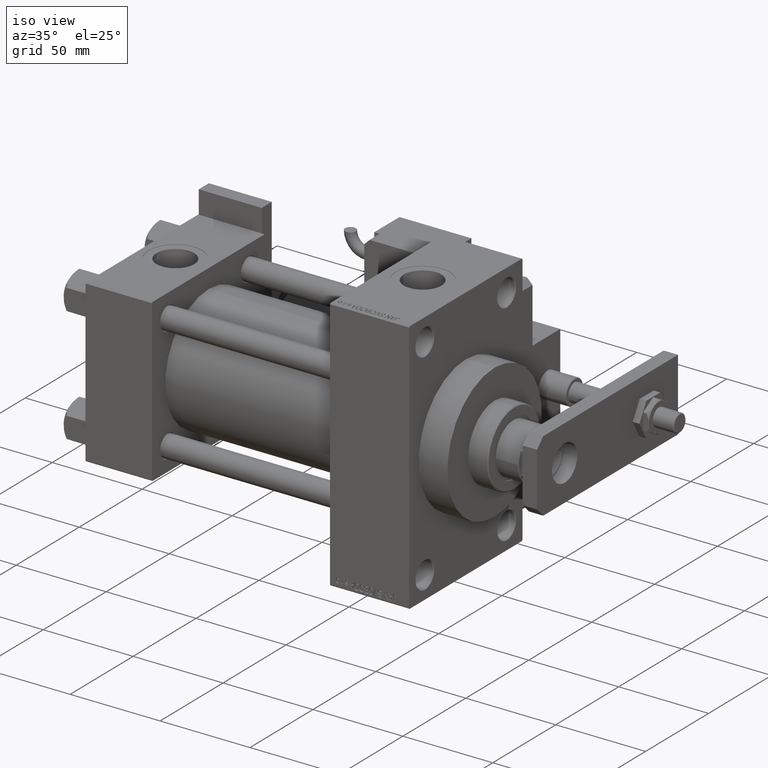
[diagram: clean part render]
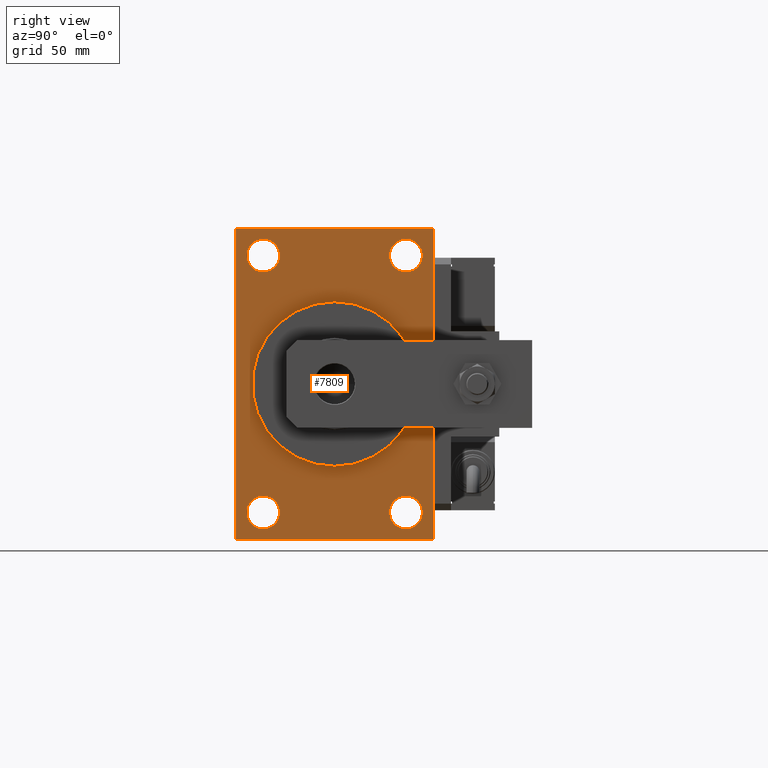
[diagram: tour spotlight — one face highlighted and labeled with its STEP entity id]
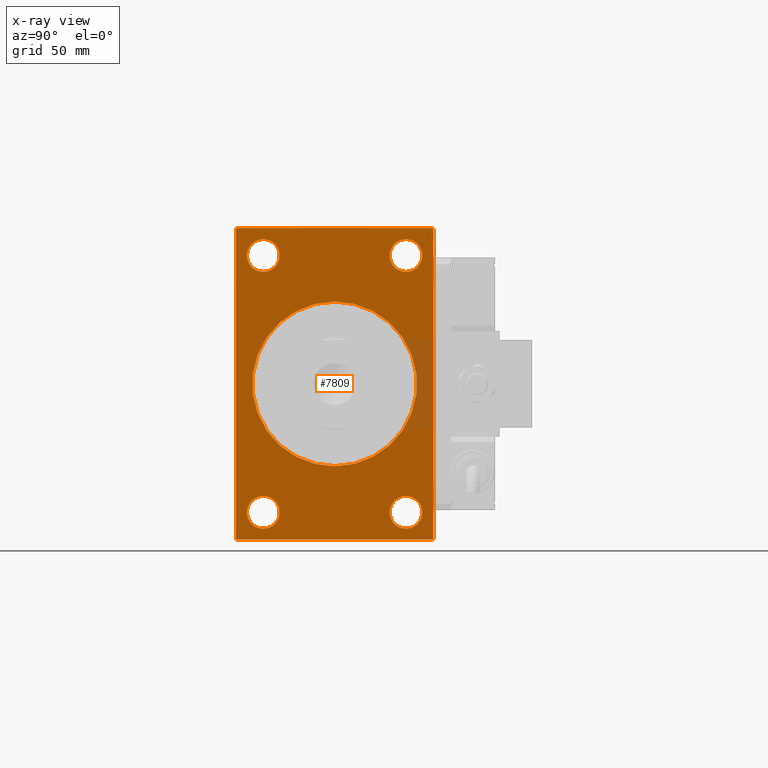
[diagram: x-ray of the same camera — body ghosted, this tour face saturated]
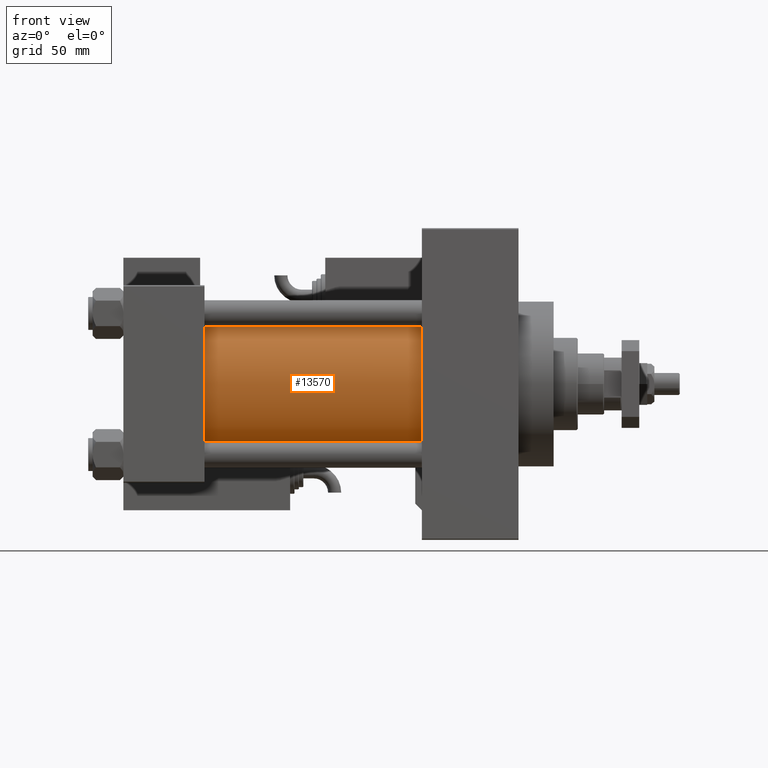
[diagram: tour spotlight — one face highlighted and labeled with its STEP entity id]
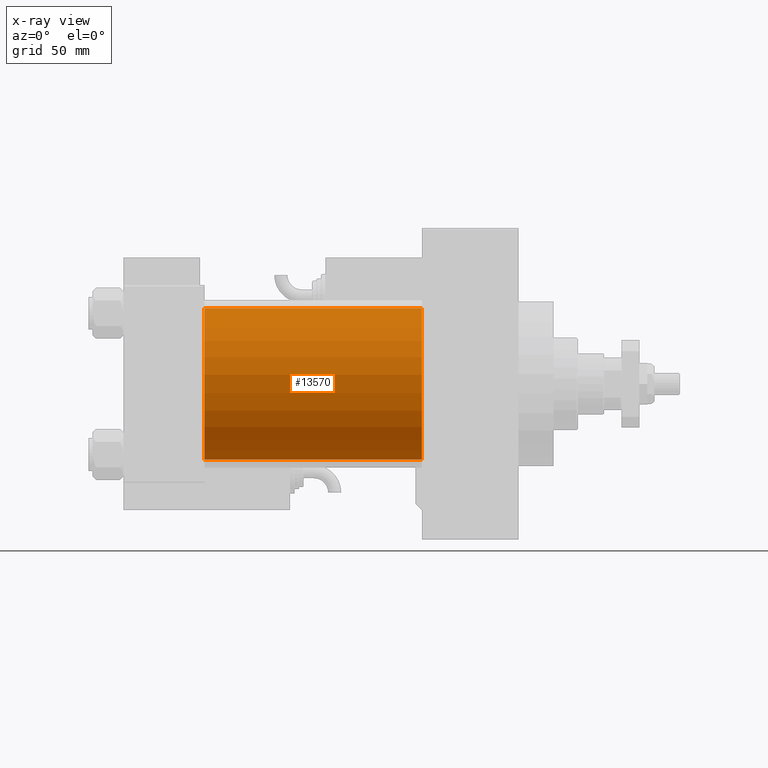
[diagram: x-ray of the same camera — body ghosted, this tour face saturated]
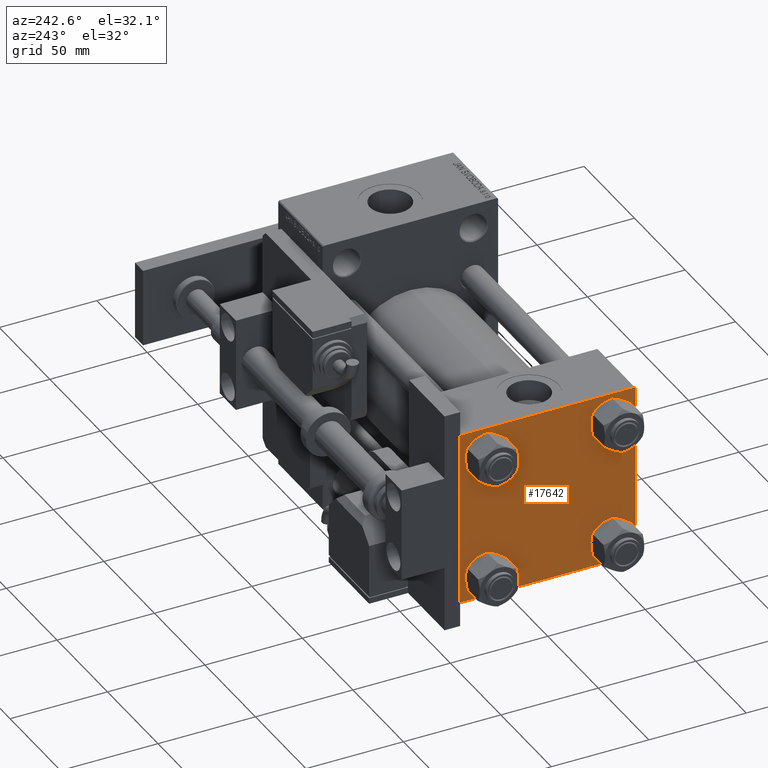
[diagram: tour spotlight — one face highlighted and labeled with its STEP entity id]
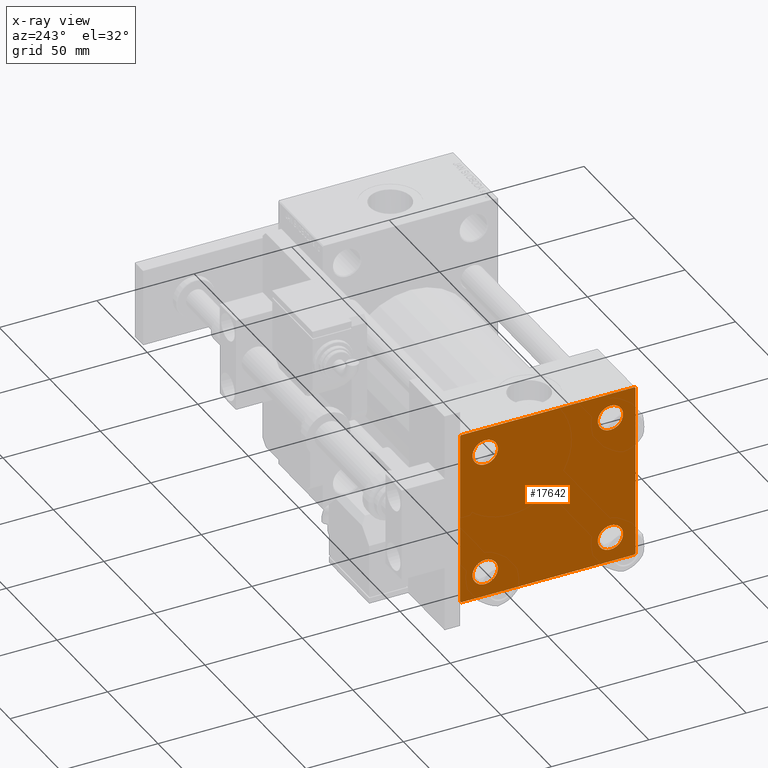
[diagram: x-ray of the same camera — body ghosted, this tour face saturated]
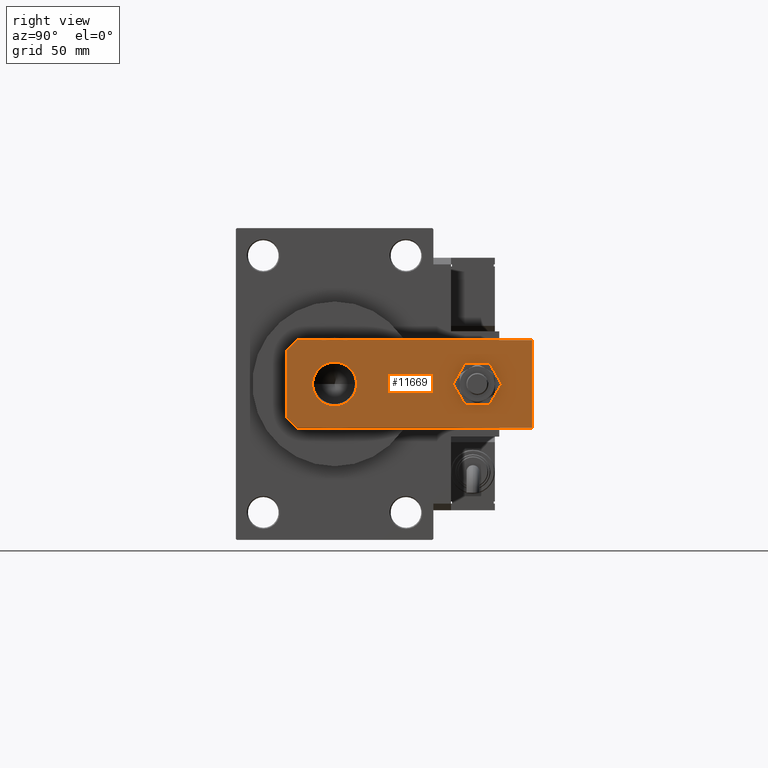
[diagram: tour spotlight — one face highlighted and labeled with its STEP entity id]
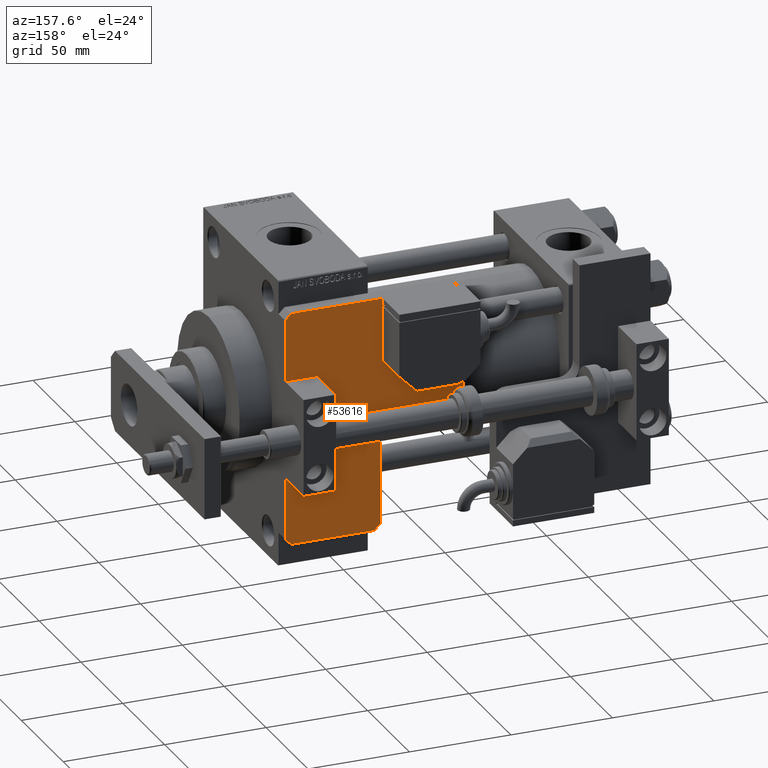
[diagram: tour spotlight — one face highlighted and labeled with its STEP entity id]
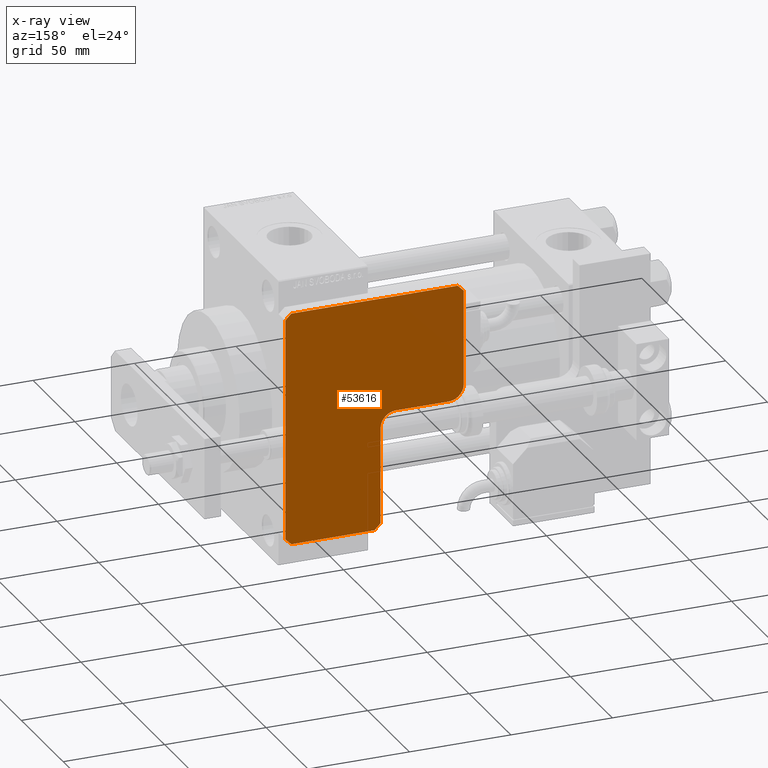
[diagram: x-ray of the same camera — body ghosted, this tour face saturated]
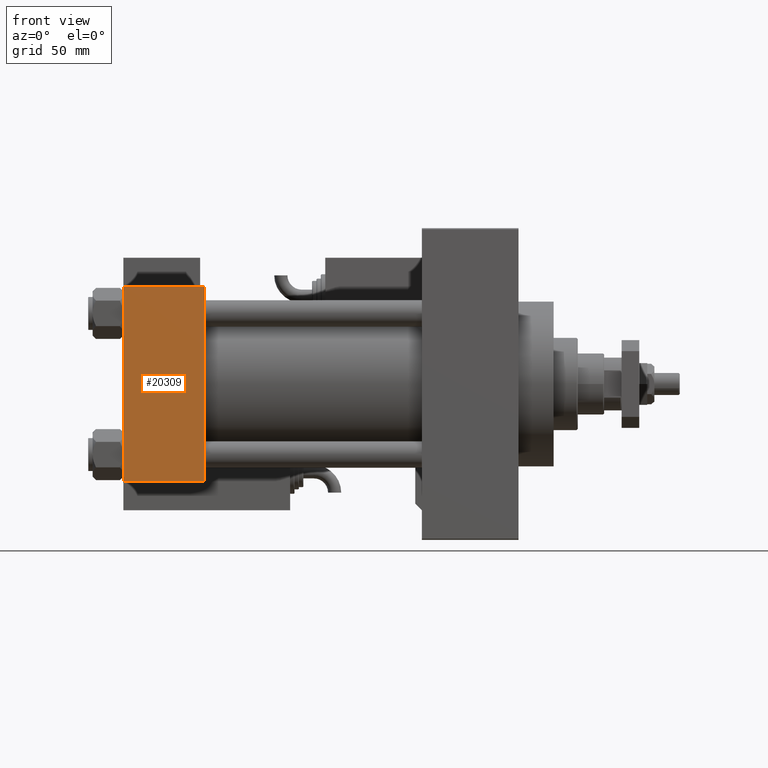
[diagram: tour spotlight — one face highlighted and labeled with its STEP entity id]
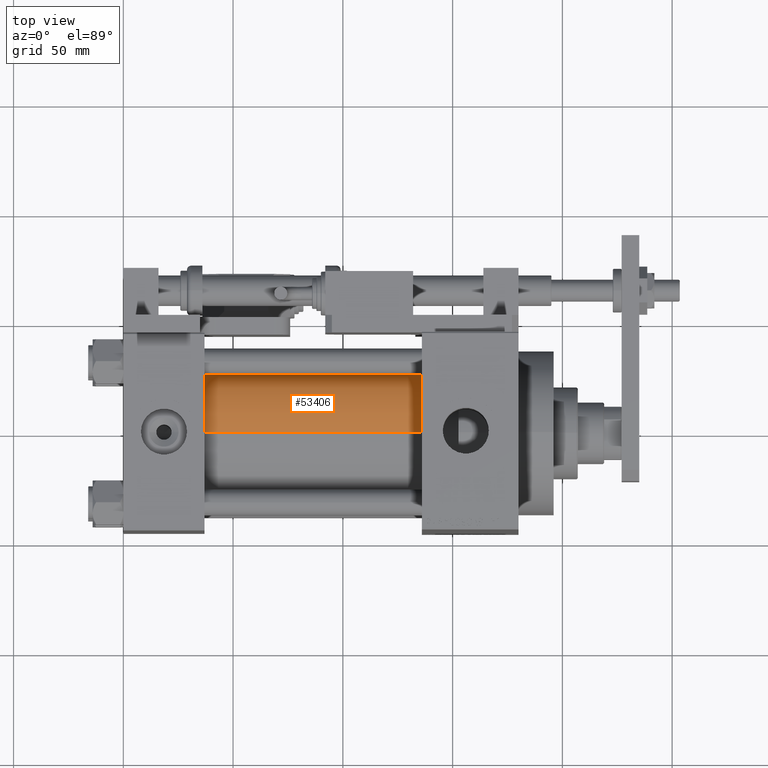
[diagram: tour spotlight — one face highlighted and labeled with its STEP entity id]
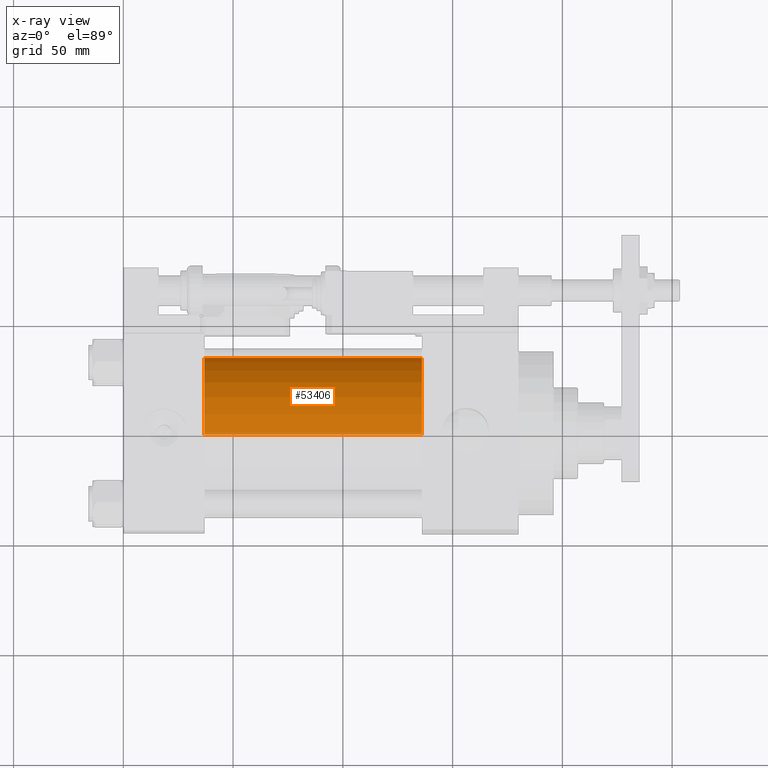
[diagram: x-ray of the same camera — body ghosted, this tour face saturated]
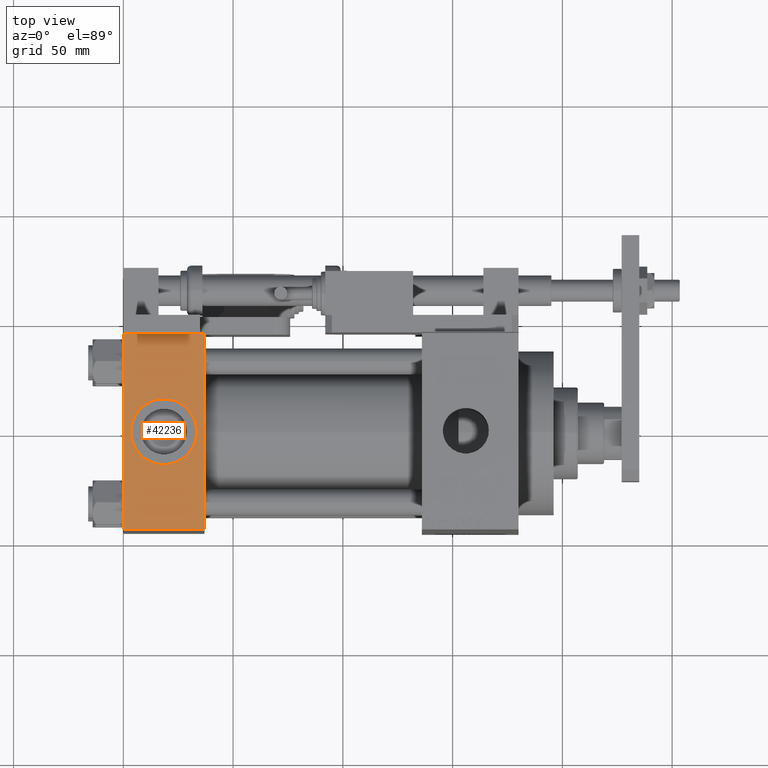
[diagram: tour spotlight — one face highlighted and labeled with its STEP entity id]
A machine part: a face-by-face anatomy tour. The part has 1432 B-rep faces; the first image is the clean iso view, then the 8 largest visible faces are spotlighted one at a time (largest first), each with its STEP entity span.

Face 1 — right view, entity #7809. An x-ray twin of the same camera follows (body ghosted, this face saturated) — the face is partly hidden behind the body. In plain terms, the highlighted planar face has unit normal (-1, 0, 0).
Definition (entity closure, byte-faithful):
#146 = EDGE_LOOP ( 'NONE', ( #7813, #30983 ) ) ;
#454 = DIRECTION ( 'NONE',  ( 0.000000000000000000, 0.000000000000000000, -1.000000000000000000 ) ) ;
#711 = DIRECTION ( 'NONE',  ( -1.000000000000000000, -0.000000000000000000, -0.000000000000000000 ) ) ;
#791 = CIRCLE ( 'NONE', #47013, 7.499999999999971578 ) ;
#932 = DIRECTION ( 'NONE',  ( 0.000000000000000000, 0.000000000000000000, 1.000000000000000000 ) ) ;
#2178 = FACE_BOUND ( 'NONE', #11689, .T. ) ;
#2732 = VERTEX_POINT ( 'NONE', #11847 ) ;
#2827 = CARTESIAN_POINT ( 'NONE',  ( 180.0000000000000000, 32.49999999999998579, -51.00000000000000711 ) ) ;
#2948 = CIRCLE ( 'NONE', #19844, 37.50000000000000711 ) ;
#3125 = CARTESIAN_POINT ( 'NONE',  ( 180.0000000000000000, 0.000000000000000000, 0.000000000000000000 ) ) ;
#3784 = DIRECTION ( 'NONE',  ( -1.000000000000000000, -0.000000000000000000, -0.000000000000000000 ) ) ;
#3912 = VERTEX_POINT ( 'NONE', #11454 ) ;
#4246 = EDGE_CURVE ( 'NONE', #14498, #5204, #11004, .T. ) ;
#4285 = CARTESIAN_POINT ( 'NONE',  ( 180.0000000000000000, 32.49999999999998579, -58.49999999999998579 ) ) ;
#4338 = CARTESIAN_POINT ( 'NONE',  ( 180.0000000000000000, -45.00000000000000000, 71.00000000000000000 ) ) ;
#5204 = VERTEX_POINT ( 'NONE', #2827 ) ;
#5307 = AXIS2_PLACEMENT_3D ( 'NONE', #16625, #24683, #7990 ) ;
#6767 = EDGE_CURVE ( 'NONE', #40682, #37753, #19608, .T. ) ;
#7582 = CARTESIAN_POINT ( 'NONE',  ( 180.0000000000000000, -45.00000000000000000, 70.50000000000001421 ) ) ;
#7809 = ADVANCED_FACE ( 'NONE', ( #2178, #43900, #19154, #14978, #9969, #48906 ), #52524, .F. ) ;
#7813 = ORIENTED_EDGE ( 'NONE', *, *, #4246, .T. ) ;
#7990 = DIRECTION ( 'NONE',  ( 0.000000000000000000, 0.000000000000000000, 1.000000000000000000 ) ) ;
#8089 = AXIS2_PLACEMENT_3D ( 'NONE', #51279, #17627, #932 ) ;
#8273 = CARTESIAN_POINT ( 'NONE',  ( 180.0000000000000000, 45.00000000000000000, 71.00000000000000000 ) ) ;
#8287 = VERTEX_POINT ( 'NONE', #7582 ) ;
#8351 = VERTEX_POINT ( 'NONE', #24826 ) ;
#9233 = CARTESIAN_POINT ( 'NONE',  ( 180.0000000000000000, -32.50000000000001421, 65.99999999999998579 ) ) ;
#9292 = CARTESIAN_POINT ( 'NONE',  ( 180.0000000000000000, -44.50000000000000000, -71.00000000000000000 ) ) ;
#9472 = DIRECTION ( 'NONE',  ( -1.000000000000000000, -0.000000000000000000, -0.000000000000000000 ) ) ;
#9963 = LINE ( 'NONE', #17783, #36748 ) ;
#9969 = FACE_BOUND ( 'NONE', #26458, .T. ) ;
#10417 = CARTESIAN_POINT ( 'NONE',  ( 180.0000000000000000, -45.00000000000000000, -70.50000000000000000 ) ) ;
#10802 = CARTESIAN_POINT ( 'NONE',  ( 180.0000000000000000, 0.000000000000000000, 0.000000000000000000 ) ) ;
#11004 = CIRCLE ( 'NONE', #30538, 7.499999999999978684 ) ;
#11454 = CARTESIAN_POINT ( 'NONE',  ( 180.0000000000000000, 32.49999999999998579, 65.99999999999997158 ) ) ;
#11689 = EDGE_LOOP ( 'NONE', ( #28724, #13804 ) ) ;
#11847 = CARTESIAN_POINT ( 'NONE',  ( 180.0000000000000000, 0.000000000000000000, 37.50000000000000711 ) ) ;
#12021 = DIRECTION ( 'NONE',  ( -0.000000000000000000, -0.7071067811865474617, -0.7071067811865474617 ) ) ;
#12150 = CARTESIAN_POINT ( 'NONE',  ( 180.0000000000000000, -32.50000000000001421, 58.50000000000001421 ) ) ;
#12247 = AXIS2_PLACEMENT_3D ( 'NONE', #52908, #36766, #53177 ) ;
#12928 = DIRECTION ( 'NONE',  ( -1.000000000000000000, -0.000000000000000000, -0.000000000000000000 ) ) ;
#13181 = EDGE_CURVE ( 'NONE', #16645, #8287, #25761, .T. ) ;
#13200 = DIRECTION ( 'NONE',  ( 0.000000000000000000, 0.000000000000000000, 1.000000000000000000 ) ) ;
#13804 = ORIENTED_EDGE ( 'NONE', *, *, #41916, .T. ) ;
#13832 = VECTOR ( 'NONE', #12021, 1000.000000000000114 ) ;
#14498 = VERTEX_POINT ( 'NONE', #49201 ) ;
#14779 = DIRECTION ( 'NONE',  ( 0.000000000000000000, 0.000000000000000000, -1.000000000000000000 ) ) ;
#14978 = FACE_BOUND ( 'NONE', #19776, .T. ) ;
#15205 = LINE ( 'NONE', #31351, #31983 ) ;
#15617 = ORIENTED_EDGE ( 'NONE', *, *, #13181, .T. ) ;
#15648 = ORIENTED_EDGE ( 'NONE', *, *, #26736, .T. ) ;
#15901 = EDGE_CURVE ( 'NONE', #3912, #42381, #21889, .T. ) ;
#15927 = VERTEX_POINT ( 'NONE', #23204 ) ;
#16002 = ORIENTED_EDGE ( 'NONE', *, *, #50161, .T. ) ;
#16625 = CARTESIAN_POINT ( 'NONE',  ( 180.0000000000000000, -32.50000000000001421, 58.50000000000001421 ) ) ;
#16645 = VERTEX_POINT ( 'NONE', #22813 ) ;
#17365 = CARTESIAN_POINT ( 'NONE',  ( 180.0000000000000000, 45.00000000000000000, -70.50000000000001421 ) ) ;
#17627 = DIRECTION ( 'NONE',  ( -1.000000000000000000, -0.000000000000000000, -0.000000000000000000 ) ) ;
#17680 = DIRECTION ( 'NONE',  ( 0.000000000000000000, 0.000000000000000000, 1.000000000000000000 ) ) ;
#17721 = LINE ( 'NONE', #8273, #46191 ) ;
#17783 = CARTESIAN_POINT ( 'NONE',  ( 180.0000000000000000, 45.00000000000000000, -70.50000000000001421 ) ) ;
#18840 = EDGE_CURVE ( 'NONE', #8351, #42386, #45984, .T. ) ;
#19154 = FACE_BOUND ( 'NONE', #146, .T. ) ;
#19310 = CARTESIAN_POINT ( 'NONE',  ( 180.0000000000000000, 45.00000000000000000, 71.00000000000000000 ) ) ;
#19608 = LINE ( 'NONE', #53815, #49322 ) ;
#19738 = DIRECTION ( 'NONE',  ( -1.000000000000000000, -0.000000000000000000, -0.000000000000000000 ) ) ;
#19776 = EDGE_LOOP ( 'NONE', ( #45192, #32347 ) ) ;
#19844 = AXIS2_PLACEMENT_3D ( 'NONE', #35906, #52879, #14779 ) ;
#19906 = VERTEX_POINT ( 'NONE', #17365 ) ;
#20790 = ORIENTED_EDGE ( 'NONE', *, *, #21347, .F. ) ;
#21347 = EDGE_CURVE ( 'NONE', #35636, #19906, #23759, .T. ) ;
#21857 = CARTESIAN_POINT ( 'NONE',  ( 180.0000000000000000, 32.49999999999998579, 58.50000000000000711 ) ) ;
#21889 = CIRCLE ( 'NONE', #28977, 7.499999999999965361 ) ;
#22000 = CARTESIAN_POINT ( 'NONE',  ( 180.0000000000000000, -32.50000000000001421, -58.49999999999998579 ) ) ;
#22813 = CARTESIAN_POINT ( 'NONE',  ( 180.0000000000000000, -44.50000000000000000, 71.00000000000000000 ) ) ;
#23204 = CARTESIAN_POINT ( 'NONE',  ( 180.0000000000000000, 4.592425496802575156E-15, -37.50000000000000711 ) ) ;
#23685 = EDGE_CURVE ( 'NONE', #35367, #47879, #791, .T. ) ;
#23759 = LINE ( 'NONE', #19310, #42431 ) ;
#24683 = DIRECTION ( 'NONE',  ( -1.000000000000000000, -0.000000000000000000, -0.000000000000000000 ) ) ;
#24826 = CARTESIAN_POINT ( 'NONE',  ( 180.0000000000000000, -32.50000000000001421, -51.00000000000000711 ) ) ;
#25761 = LINE ( 'NONE', #28688, #13832 ) ;
#25947 = ORIENTED_EDGE ( 'NONE', *, *, #6767, .F. ) ;
#25959 = CIRCLE ( 'NONE', #33933, 7.499999999999978684 ) ;
#26059 = ORIENTED_EDGE ( 'NONE', *, *, #33417, .T. ) ;
#26458 = EDGE_LOOP ( 'NONE', ( #40415, #54881 ) ) ;
#26736 = EDGE_CURVE ( 'NONE', #35636, #35148, #15205, .T. ) ;
#26940 = DIRECTION ( 'NONE',  ( -1.000000000000000000, 0.000000000000000000, -0.000000000000000000 ) ) ;
#27754 = DIRECTION ( 'NONE',  ( -0.000000000000000000, 0.000000000000000000, 1.000000000000000000 ) ) ;
#28157 = CARTESIAN_POINT ( 'NONE',  ( 180.0000000000000000, 32.49999999999998579, 51.00000000000004263 ) ) ;
#28165 = EDGE_CURVE ( 'NONE', #42381, #3912, #30325, .T. ) ;
#28565 = CARTESIAN_POINT ( 'NONE',  ( 180.0000000000000000, 45.00000000000000000, 70.50000000000000000 ) ) ;
#28688 = CARTESIAN_POINT ( 'NONE',  ( 180.0000000000000000, -45.00000000000000000, 70.50000000000001421 ) ) ;
#28724 = ORIENTED_EDGE ( 'NONE', *, *, #23685, .T. ) ;
#28977 = AXIS2_PLACEMENT_3D ( 'NONE', #21857, #711, #17680 ) ;
#29061 = ORIENTED_EDGE ( 'NONE', *, *, #18840, .T. ) ;
#29078 = EDGE_CURVE ( 'NONE', #31994, #37753, #38776, .T. ) ;
#29574 = CIRCLE ( 'NONE', #44641, 7.499999999999978684 ) ;
#30206 = CIRCLE ( 'NONE', #44402, 37.50000000000000711 ) ;
#30325 = CIRCLE ( 'NONE', #8089, 7.499999999999965361 ) ;
#30538 = AXIS2_PLACEMENT_3D ( 'NONE', #48667, #19738, #35867 ) ;
#30835 = DIRECTION ( 'NONE',  ( -0.000000000000000000, 0.7071067811865474617, 0.7071067811865474617 ) ) ;
#30983 = ORIENTED_EDGE ( 'NONE', *, *, #47643, .T. ) ;
#31351 = CARTESIAN_POINT ( 'NONE',  ( 180.0000000000000000, 44.50000000000000000, 71.00000000000000000 ) ) ;
#31577 = DIRECTION ( 'NONE',  ( 0.000000000000000000, -1.000000000000000000, 0.000000000000000000 ) ) ;
#31983 = VECTOR ( 'NONE', #40783, 1000.000000000000114 ) ;
#31994 = VERTEX_POINT ( 'NONE', #10417 ) ;
#32336 = EDGE_LOOP ( 'NONE', ( #26059, #45981, #25947, #16002, #20790, #15648, #48272, #15617 ) ) ;
#32347 = ORIENTED_EDGE ( 'NONE', *, *, #15901, .T. ) ;
#32862 = EDGE_CURVE ( 'NONE', #42386, #8351, #25959, .T. ) ;
#33417 = EDGE_CURVE ( 'NONE', #8287, #31994, #42993, .T. ) ;
#33444 = DIRECTION ( 'NONE',  ( 1.000000000000000000, 0.000000000000000000, 0.000000000000000000 ) ) ;
#33933 = AXIS2_PLACEMENT_3D ( 'NONE', #22000, #9472, #35059 ) ;
#34677 = DIRECTION ( 'NONE',  ( 0.000000000000000000, -1.000000000000000000, 0.000000000000000000 ) ) ;
#34862 = DIRECTION ( 'NONE',  ( 0.000000000000000000, 0.7071067811865474617, -0.7071067811865474617 ) ) ;
#35059 = DIRECTION ( 'NONE',  ( 0.000000000000000000, 0.000000000000000000, 1.000000000000000000 ) ) ;
#35148 = VERTEX_POINT ( 'NONE', #37199 ) ;
#35367 = VERTEX_POINT ( 'NONE', #42523 ) ;
#35476 = CIRCLE ( 'NONE', #5307, 7.499999999999971578 ) ;
#35636 = VERTEX_POINT ( 'NONE', #28565 ) ;
#35867 = DIRECTION ( 'NONE',  ( 0.000000000000000000, 0.000000000000000000, 1.000000000000000000 ) ) ;
#35906 = CARTESIAN_POINT ( 'NONE',  ( 180.0000000000000000, 0.000000000000000000, 0.000000000000000000 ) ) ;
#36748 = VECTOR ( 'NONE', #30835, 1000.000000000000114 ) ;
#36766 = DIRECTION ( 'NONE',  ( -1.000000000000000000, -0.000000000000000000, -0.000000000000000000 ) ) ;
#37199 = CARTESIAN_POINT ( 'NONE',  ( 180.0000000000000000, 44.50000000000000000, 71.00000000000000000 ) ) ;
#37753 = VERTEX_POINT ( 'NONE', #43239 ) ;
#38776 = LINE ( 'NONE', #9292, #51692 ) ;
#38857 = EDGE_LOOP ( 'NONE', ( #43576, #29061 ) ) ;
#39361 = EDGE_CURVE ( 'NONE', #35148, #16645, #17721, .T. ) ;
#40415 = ORIENTED_EDGE ( 'NONE', *, *, #49674, .F. ) ;
#40682 = VERTEX_POINT ( 'NONE', #48773 ) ;
#40783 = DIRECTION ( 'NONE',  ( 0.000000000000000000, -0.7071067811865474617, 0.7071067811865474617 ) ) ;
#41916 = EDGE_CURVE ( 'NONE', #47879, #35367, #35476, .T. ) ;
#42381 = VERTEX_POINT ( 'NONE', #28157 ) ;
#42386 = VERTEX_POINT ( 'NONE', #52933 ) ;
#42431 = VECTOR ( 'NONE', #52967, 1000.000000000000000 ) ;
#42484 = EDGE_CURVE ( 'NONE', #15927, #2732, #30206, .T. ) ;
#42523 = CARTESIAN_POINT ( 'NONE',  ( 180.0000000000000000, -32.50000000000001421, 51.00000000000004263 ) ) ;
#42993 = LINE ( 'NONE', #4338, #53452 ) ;
#43239 = CARTESIAN_POINT ( 'NONE',  ( 180.0000000000000000, -44.49999999999997158, -71.00000000000000000 ) ) ;
#43576 = ORIENTED_EDGE ( 'NONE', *, *, #32862, .T. ) ;
#43900 = FACE_BOUND ( 'NONE', #38857, .T. ) ;
#44402 = AXIS2_PLACEMENT_3D ( 'NONE', #3125, #33444, #50962 ) ;
#44641 = AXIS2_PLACEMENT_3D ( 'NONE', #4285, #12928, #13200 ) ;
#45192 = ORIENTED_EDGE ( 'NONE', *, *, #28165, .T. ) ;
#45981 = ORIENTED_EDGE ( 'NONE', *, *, #29078, .T. ) ;
#45984 = CIRCLE ( 'NONE', #12247, 7.499999999999978684 ) ;
#46073 = DIRECTION ( 'NONE',  ( 0.000000000000000000, 0.000000000000000000, 1.000000000000000000 ) ) ;
#46191 = VECTOR ( 'NONE', #34677, 1000.000000000000000 ) ;
#47013 = AXIS2_PLACEMENT_3D ( 'NONE', #12150, #3784, #46073 ) ;
#47643 = EDGE_CURVE ( 'NONE', #5204, #14498, #29574, .T. ) ;
#47879 = VERTEX_POINT ( 'NONE', #9233 ) ;
#48272 = ORIENTED_EDGE ( 'NONE', *, *, #39361, .T. ) ;
#48667 = CARTESIAN_POINT ( 'NONE',  ( 180.0000000000000000, 32.49999999999998579, -58.49999999999998579 ) ) ;
#48773 = CARTESIAN_POINT ( 'NONE',  ( 180.0000000000000000, 44.50000000000002842, -71.00000000000000000 ) ) ;
#48906 = FACE_OUTER_BOUND ( 'NONE', #32336, .T. ) ;
#49201 = CARTESIAN_POINT ( 'NONE',  ( 180.0000000000000000, 32.49999999999998579, -65.99999999999994316 ) ) ;
#49322 = VECTOR ( 'NONE', #31577, 1000.000000000000000 ) ;
#49674 = EDGE_CURVE ( 'NONE', #2732, #15927, #2948, .T. ) ;
#50161 = EDGE_CURVE ( 'NONE', #40682, #19906, #9963, .T. ) ;
#50962 = DIRECTION ( 'NONE',  ( 0.000000000000000000, 0.000000000000000000, -1.000000000000000000 ) ) ;
#51153 = AXIS2_PLACEMENT_3D ( 'NONE', #10802, #26940, #27754 ) ;
#51279 = CARTESIAN_POINT ( 'NONE',  ( 180.0000000000000000, 32.49999999999998579, 58.50000000000000711 ) ) ;
#51692 = VECTOR ( 'NONE', #34862, 1000.000000000000114 ) ;
#52524 = PLANE ( 'NONE',  #51153 ) ;
#52879 = DIRECTION ( 'NONE',  ( 1.000000000000000000, 0.000000000000000000, 0.000000000000000000 ) ) ;
#52908 = CARTESIAN_POINT ( 'NONE',  ( 180.0000000000000000, -32.50000000000001421, -58.49999999999998579 ) ) ;
#52933 = CARTESIAN_POINT ( 'NONE',  ( 180.0000000000000000, -32.50000000000001421, -65.99999999999994316 ) ) ;
#52967 = DIRECTION ( 'NONE',  ( 0.000000000000000000, 0.000000000000000000, -1.000000000000000000 ) ) ;
#53177 = DIRECTION ( 'NONE',  ( 0.000000000000000000, 0.000000000000000000, 1.000000000000000000 ) ) ;
#53452 = VECTOR ( 'NONE', #454, 1000.000000000000000 ) ;
#53815 = CARTESIAN_POINT ( 'NONE',  ( 180.0000000000000000, 45.00000000000000000, -71.00000000000000000 ) ) ;
#54881 = ORIENTED_EDGE ( 'NONE', *, *, #42484, .F. ) ;

Face 2 — front view, entity #13570. An x-ray twin of the same camera follows (body ghosted, this face saturated) — the face is partly hidden behind the body. In plain terms, the highlighted cylindrical surface (partial cylindrical patch) has radius 34.5 mm, axis along (-1, -0, -0).
Definition (entity closure, byte-faithful):
#70 = CIRCLE ( 'NONE', #2722, 34.50000000000000000 ) ;
#115 = ORIENTED_EDGE ( 'NONE', *, *, #27485, .F. ) ;
#136 = CARTESIAN_POINT ( 'NONE',  ( 136.0000000000000000, 1.622946243093158675E-15, -34.50000000000000000 ) ) ;
#2722 = AXIS2_PLACEMENT_3D ( 'NONE', #38628, #42782, #26113 ) ;
#3040 = DIRECTION ( 'NONE',  ( -1.000000000000000000, -0.000000000000000000, -0.000000000000000000 ) ) ;
#3126 = AXIS2_PLACEMENT_3D ( 'NONE', #24192, #3040, #20024 ) ;
#3217 = CARTESIAN_POINT ( 'NONE',  ( 37.00000000000000711, 1.622946243093158675E-15, -34.50000000000000000 ) ) ;
#3566 = VECTOR ( 'NONE', #12874, 1000.000000000000000 ) ;
#4396 = CARTESIAN_POINT ( 'NONE',  ( 37.00000000000000711, -2.602085213965210642E-15, 34.50000000000000000 ) ) ;
#7214 = CYLINDRICAL_SURFACE ( 'NONE', #3126, 34.50000000000000000 ) ;
#7530 = EDGE_LOOP ( 'NONE', ( #41016, #115, #43556, #54657 ) ) ;
#11735 = DIRECTION ( 'NONE',  ( 0.000000000000000000, 0.000000000000000000, 1.000000000000000000 ) ) ;
#12874 = DIRECTION ( 'NONE',  ( -1.000000000000000000, -0.000000000000000000, -0.000000000000000000 ) ) ;
#13570 = ADVANCED_FACE ( 'NONE', ( #53670 ), #7214, .T. ) ;
#15679 = VERTEX_POINT ( 'NONE', #4396 ) ;
#17505 = CARTESIAN_POINT ( 'NONE',  ( 136.0000000000000000, -2.602085213965210642E-15, 34.50000000000000000 ) ) ;
#20024 = DIRECTION ( 'NONE',  ( 0.000000000000000000, 0.000000000000000000, 1.000000000000000000 ) ) ;
#20914 = DIRECTION ( 'NONE',  ( 1.000000000000000000, -0.000000000000000000, 0.000000000000000000 ) ) ;
#21166 = CIRCLE ( 'NONE', #52244, 34.50000000000000000 ) ;
#21288 = VECTOR ( 'NONE', #22374, 1000.000000000000000 ) ;
#22374 = DIRECTION ( 'NONE',  ( -1.000000000000000000, -0.000000000000000000, -0.000000000000000000 ) ) ;
#22657 = EDGE_CURVE ( 'NONE', #15679, #54272, #21166, .T. ) ;
#24192 = CARTESIAN_POINT ( 'NONE',  ( 136.0000000000000000, -2.602085213965210642E-15, 0.000000000000000000 ) ) ;
#26113 = DIRECTION ( 'NONE',  ( 0.000000000000000000, 0.000000000000000000, -1.000000000000000000 ) ) ;
#27485 = EDGE_CURVE ( 'NONE', #34870, #34162, #70, .T. ) ;
#30979 = LINE ( 'NONE', #136, #21288 ) ;
#34162 = VERTEX_POINT ( 'NONE', #38279 ) ;
#34870 = VERTEX_POINT ( 'NONE', #17505 ) ;
#37818 = EDGE_CURVE ( 'NONE', #34162, #54272, #30979, .T. ) ;
#37898 = LINE ( 'NONE', #51517, #3566 ) ;
#38279 = CARTESIAN_POINT ( 'NONE',  ( 136.0000000000000000, 1.622946243093158675E-15, -34.50000000000000000 ) ) ;
#38628 = CARTESIAN_POINT ( 'NONE',  ( 136.0000000000000000, -2.602085213965210642E-15, 0.000000000000000000 ) ) ;
#40111 = EDGE_CURVE ( 'NONE', #34870, #15679, #37898, .T. ) ;
#41016 = ORIENTED_EDGE ( 'NONE', *, *, #37818, .F. ) ;
#41482 = CARTESIAN_POINT ( 'NONE',  ( 37.00000000000000711, -2.602085213965210642E-15, 0.000000000000000000 ) ) ;
#42782 = DIRECTION ( 'NONE',  ( 1.000000000000000000, 0.000000000000000000, 0.000000000000000000 ) ) ;
#43556 = ORIENTED_EDGE ( 'NONE', *, *, #40111, .T. ) ;
#51517 = CARTESIAN_POINT ( 'NONE',  ( 136.0000000000000000, -2.602085213965210642E-15, 34.50000000000000000 ) ) ;
#52244 = AXIS2_PLACEMENT_3D ( 'NONE', #41482, #20914, #11735 ) ;
#53670 = FACE_OUTER_BOUND ( 'NONE', #7530, .T. ) ;
#54272 = VERTEX_POINT ( 'NONE', #3217 ) ;
#54657 = ORIENTED_EDGE ( 'NONE', *, *, #22657, .T. ) ;

Face 3 — auxiliary view, entity #17642. An x-ray twin of the same camera follows (body ghosted, this face saturated) — the face is partly hidden behind the body. In plain terms, the highlighted planar face has unit normal (-1, 0, 0).
Definition (entity closure, byte-faithful):
#93 = FACE_BOUND ( 'NONE', #36933, .T. ) ;
#139 = VERTEX_POINT ( 'NONE', #52858 ) ;
#177 = EDGE_CURVE ( 'NONE', #6547, #5908, #15026, .T. ) ;
#432 = EDGE_LOOP ( 'NONE', ( #31612, #47291 ) ) ;
#900 = VERTEX_POINT ( 'NONE', #52866 ) ;
#1238 = AXIS2_PLACEMENT_3D ( 'NONE', #32712, #36606, #54412 ) ;
#1259 = DIRECTION ( 'NONE',  ( -0.000000000000000000, 0.7071067811865474617, 0.7071067811865474617 ) ) ;
#1474 = EDGE_CURVE ( 'NONE', #44556, #46172, #47479, .T. ) ;
#1751 = DIRECTION ( 'NONE',  ( 0.000000000000000000, 0.000000000000000000, 1.000000000000000000 ) ) ;
#1830 = ORIENTED_EDGE ( 'NONE', *, *, #8269, .T. ) ;
#1838 = CARTESIAN_POINT ( 'NONE',  ( 0.000000000000000000, -32.14999999999997726, 32.15000000000000568 ) ) ;
#2137 = DIRECTION ( 'NONE',  ( 0.000000000000000000, 0.000000000000000000, 1.000000000000000000 ) ) ;
#2493 = CIRCLE ( 'NONE', #39813, 6.499999999999977796 ) ;
#2600 = CIRCLE ( 'NONE', #43458, 6.499999999999977796 ) ;
#3683 = EDGE_CURVE ( 'NONE', #139, #26519, #43871, .T. ) ;
#4439 = CARTESIAN_POINT ( 'NONE',  ( 0.000000000000000000, -32.14999999999997726, -32.15000000000000568 ) ) ;
#4591 = AXIS2_PLACEMENT_3D ( 'NONE', #32054, #49029, #1751 ) ;
#4920 = CARTESIAN_POINT ( 'NONE',  ( 0.000000000000000000, 45.00000000000000000, -44.99999999999999289 ) ) ;
#5416 = LINE ( 'NONE', #39634, #36157 ) ;
#5809 = DIRECTION ( 'NONE',  ( 0.000000000000000000, 0.000000000000000000, -1.000000000000000000 ) ) ;
#5908 = VERTEX_POINT ( 'NONE', #42100 ) ;
#6345 = CARTESIAN_POINT ( 'NONE',  ( 0.000000000000000000, -45.00000000000000000, 44.99999999999998579 ) ) ;
#6547 = VERTEX_POINT ( 'NONE', #24949 ) ;
#7108 = ORIENTED_EDGE ( 'NONE', *, *, #1474, .T. ) ;
#7246 = CIRCLE ( 'NONE', #4591, 6.500000000000019540 ) ;
#7654 = VERTEX_POINT ( 'NONE', #33381 ) ;
#8269 = EDGE_CURVE ( 'NONE', #46172, #15939, #46246, .T. ) ;
#8410 = CARTESIAN_POINT ( 'NONE',  ( 0.000000000000000000, -45.00000000000000000, 44.49999999999998579 ) ) ;
#10434 = DIRECTION ( 'NONE',  ( 0.000000000000000000, 0.000000000000000000, 1.000000000000000000 ) ) ;
#11241 = VERTEX_POINT ( 'NONE', #30626 ) ;
#11768 = VECTOR ( 'NONE', #38854, 1000.000000000000000 ) ;
#12321 = DIRECTION ( 'NONE',  ( -0.000000000000000000, -0.7071067811865474617, -0.7071067811865474617 ) ) ;
#12901 = DIRECTION ( 'NONE',  ( -1.000000000000000000, 0.000000000000000000, -0.000000000000000000 ) ) ;
#13345 = DIRECTION ( 'NONE',  ( 0.000000000000000000, 0.000000000000000000, 1.000000000000000000 ) ) ;
#13974 = AXIS2_PLACEMENT_3D ( 'NONE', #50451, #12901, #54072 ) ;
#14347 = LINE ( 'NONE', #43820, #54393 ) ;
#15026 = LINE ( 'NONE', #28358, #44578 ) ;
#15261 = CARTESIAN_POINT ( 'NONE',  ( 0.000000000000000000, -32.14999999999997726, 25.65000000000002700 ) ) ;
#15939 = VERTEX_POINT ( 'NONE', #52149 ) ;
#16495 = LINE ( 'NONE', #33445, #44285 ) ;
#17507 = EDGE_CURVE ( 'NONE', #50694, #35574, #5416, .T. ) ;
#17642 = ADVANCED_FACE ( 'NONE', ( #93, #41815, #25134, #50999, #38196 ), #24863, .T. ) ;
#17661 = ORIENTED_EDGE ( 'NONE', *, *, #29505, .F. ) ;
#18557 = DIRECTION ( 'NONE',  ( 0.000000000000000000, 0.000000000000000000, 1.000000000000000000 ) ) ;
#18649 = ORIENTED_EDGE ( 'NONE', *, *, #19722, .T. ) ;
#18821 = CARTESIAN_POINT ( 'NONE',  ( 0.000000000000000000, -44.49999999999994316, -45.00000000000000000 ) ) ;
#19133 = ORIENTED_EDGE ( 'NONE', *, *, #31713, .T. ) ;
#19722 = EDGE_CURVE ( 'NONE', #35050, #52177, #2493, .T. ) ;
#20756 = CARTESIAN_POINT ( 'NONE',  ( 0.000000000000000000, -32.14999999999997726, -38.64999999999998437 ) ) ;
#22724 = DIRECTION ( 'NONE',  ( 0.000000000000000000, 0.000000000000000000, 1.000000000000000000 ) ) ;
#23002 = CARTESIAN_POINT ( 'NONE',  ( 0.000000000000000000, 32.14999999999999147, 32.14999999999999858 ) ) ;
#23065 = CIRCLE ( 'NONE', #24858, 6.500000000000019540 ) ;
#23278 = CARTESIAN_POINT ( 'NONE',  ( 0.000000000000000000, -32.14999999999997726, -32.15000000000000568 ) ) ;
#23312 = CARTESIAN_POINT ( 'NONE',  ( 0.000000000000000000, 45.00000000000000000, -44.49999999999996447 ) ) ;
#23489 = EDGE_CURVE ( 'NONE', #7654, #31069, #39844, .T. ) ;
#24201 = DIRECTION ( 'NONE',  ( 0.000000000000000000, 0.7071067811865574537, -0.7071067811865376918 ) ) ;
#24212 = DIRECTION ( 'NONE',  ( 1.000000000000000000, -0.000000000000000000, 0.000000000000000000 ) ) ;
#24762 = DIRECTION ( 'NONE',  ( 0.000000000000000000, 0.000000000000000000, 1.000000000000000000 ) ) ;
#24858 = AXIS2_PLACEMENT_3D ( 'NONE', #37275, #24212, #24762 ) ;
#24863 = PLANE ( 'NONE',  #13974 ) ;
#24949 = CARTESIAN_POINT ( 'NONE',  ( 0.000000000000000000, 44.49999999999997158, 45.00000000000000711 ) ) ;
#25134 = FACE_BOUND ( 'NONE', #36802, .T. ) ;
#25867 = DIRECTION ( 'NONE',  ( 1.000000000000000000, -0.000000000000000000, 0.000000000000000000 ) ) ;
#26519 = VERTEX_POINT ( 'NONE', #38070 ) ;
#27665 = CARTESIAN_POINT ( 'NONE',  ( 0.000000000000000000, -32.14999999999997726, 32.15000000000000568 ) ) ;
#27712 = DIRECTION ( 'NONE',  ( 1.000000000000000000, -0.000000000000000000, 0.000000000000000000 ) ) ;
#28141 = ORIENTED_EDGE ( 'NONE', *, *, #38742, .T. ) ;
#28290 = AXIS2_PLACEMENT_3D ( 'NONE', #23278, #40241, #2137 ) ;
#28358 = CARTESIAN_POINT ( 'NONE',  ( 0.000000000000000000, 44.74999999999936762, 44.75000000000061107 ) ) ;
#28411 = VECTOR ( 'NONE', #29051, 1000.000000000000000 ) ;
#28709 = CARTESIAN_POINT ( 'NONE',  ( 0.000000000000000000, -44.74999999999873523, -44.75000000000122924 ) ) ;
#29051 = DIRECTION ( 'NONE',  ( 0.000000000000000000, 0.000000000000000000, -1.000000000000000000 ) ) ;
#29130 = EDGE_CURVE ( 'NONE', #26519, #139, #7246, .T. ) ;
#29505 = EDGE_CURVE ( 'NONE', #50694, #15939, #35296, .T. ) ;
#30626 = CARTESIAN_POINT ( 'NONE',  ( 0.000000000000000000, 32.14999999999999147, 25.64999999999997726 ) ) ;
#30784 = ORIENTED_EDGE ( 'NONE', *, *, #3683, .T. ) ;
#31069 = VERTEX_POINT ( 'NONE', #20756 ) ;
#31612 = ORIENTED_EDGE ( 'NONE', *, *, #23489, .T. ) ;
#31713 = EDGE_CURVE ( 'NONE', #900, #11241, #32264, .T. ) ;
#31816 = ORIENTED_EDGE ( 'NONE', *, *, #17507, .T. ) ;
#32054 = CARTESIAN_POINT ( 'NONE',  ( 0.000000000000000000, 32.14999999999999147, -32.14999999999999858 ) ) ;
#32264 = CIRCLE ( 'NONE', #46459, 6.500000000000019540 ) ;
#32467 = CARTESIAN_POINT ( 'NONE',  ( 0.000000000000000000, -44.49999999999997158, 44.99999999999998579 ) ) ;
#32712 = CARTESIAN_POINT ( 'NONE',  ( 0.000000000000000000, 32.14999999999999147, -32.14999999999999858 ) ) ;
#32951 = CARTESIAN_POINT ( 'NONE',  ( 0.000000000000000000, 45.00000000000000000, 45.00000000000000711 ) ) ;
#33381 = CARTESIAN_POINT ( 'NONE',  ( 0.000000000000000000, -32.14999999999997726, -25.65000000000002700 ) ) ;
#33445 = CARTESIAN_POINT ( 'NONE',  ( 0.000000000000000000, 44.74999999999999289, -44.74999999999999289 ) ) ;
#34395 = ORIENTED_EDGE ( 'NONE', *, *, #47388, .F. ) ;
#35050 = VERTEX_POINT ( 'NONE', #40813 ) ;
#35296 = LINE ( 'NONE', #6345, #49897 ) ;
#35574 = VERTEX_POINT ( 'NONE', #32467 ) ;
#35741 = DIRECTION ( 'NONE',  ( 1.000000000000000000, -0.000000000000000000, 0.000000000000000000 ) ) ;
#35771 = DIRECTION ( 'NONE',  ( 1.000000000000000000, -0.000000000000000000, 0.000000000000000000 ) ) ;
#36157 = VECTOR ( 'NONE', #1259, 1000.000000000000114 ) ;
#36606 = DIRECTION ( 'NONE',  ( 1.000000000000000000, -0.000000000000000000, 0.000000000000000000 ) ) ;
#36802 = EDGE_LOOP ( 'NONE', ( #42538, #30784 ) ) ;
#36933 = EDGE_LOOP ( 'NONE', ( #18649, #54481 ) ) ;
#36946 = EDGE_LOOP ( 'NONE', ( #28141, #50882, #7108, #1830, #17661, #31816, #34395, #48838 ) ) ;
#37224 = EDGE_CURVE ( 'NONE', #50232, #44556, #16495, .T. ) ;
#37275 = CARTESIAN_POINT ( 'NONE',  ( 0.000000000000000000, 32.14999999999999147, 32.14999999999999858 ) ) ;
#38070 = CARTESIAN_POINT ( 'NONE',  ( 0.000000000000000000, 32.14999999999999147, -25.64999999999997726 ) ) ;
#38196 = FACE_OUTER_BOUND ( 'NONE', #36946, .T. ) ;
#38742 = EDGE_CURVE ( 'NONE', #5908, #50232, #41292, .T. ) ;
#38854 = DIRECTION ( 'NONE',  ( 0.000000000000000000, -1.000000000000000000, -7.709882115452476934E-17 ) ) ;
#38996 = EDGE_CURVE ( 'NONE', #11241, #900, #23065, .T. ) ;
#39128 = EDGE_CURVE ( 'NONE', #31069, #7654, #41725, .T. ) ;
#39634 = CARTESIAN_POINT ( 'NONE',  ( -0.000000000000000000, -44.74999999999999289, 44.74999999999999289 ) ) ;
#39813 = AXIS2_PLACEMENT_3D ( 'NONE', #27665, #35741, #10434 ) ;
#39844 = CIRCLE ( 'NONE', #28290, 6.499999999999977796 ) ;
#39874 = CARTESIAN_POINT ( 'NONE',  ( 0.000000000000000000, 44.50000000000000000, -44.99999999999999289 ) ) ;
#40241 = DIRECTION ( 'NONE',  ( 1.000000000000000000, -0.000000000000000000, 0.000000000000000000 ) ) ;
#40525 = EDGE_CURVE ( 'NONE', #52177, #35050, #2600, .T. ) ;
#40813 = CARTESIAN_POINT ( 'NONE',  ( 0.000000000000000000, -32.14999999999997726, 38.64999999999999147 ) ) ;
#41292 = LINE ( 'NONE', #32951, #28411 ) ;
#41725 = CIRCLE ( 'NONE', #50639, 6.499999999999977796 ) ;
#41815 = FACE_BOUND ( 'NONE', #432, .T. ) ;
#42100 = CARTESIAN_POINT ( 'NONE',  ( 0.000000000000000000, 45.00000000000000000, 44.49999999999999289 ) ) ;
#42538 = ORIENTED_EDGE ( 'NONE', *, *, #29130, .T. ) ;
#42595 = DIRECTION ( 'NONE',  ( 0.000000000000000000, -0.7071067811865672237, 0.7071067811865279218 ) ) ;
#43458 = AXIS2_PLACEMENT_3D ( 'NONE', #1838, #35771, #22724 ) ;
#43820 = CARTESIAN_POINT ( 'NONE',  ( 0.000000000000000000, 45.00000000000000000, 45.00000000000000711 ) ) ;
#43871 = CIRCLE ( 'NONE', #1238, 6.500000000000019540 ) ;
#44285 = VECTOR ( 'NONE', #12321, 1000.000000000000114 ) ;
#44556 = VERTEX_POINT ( 'NONE', #39874 ) ;
#44578 = VECTOR ( 'NONE', #24201, 999.9999999999998863 ) ;
#45908 = EDGE_LOOP ( 'NONE', ( #19133, #53904 ) ) ;
#46172 = VERTEX_POINT ( 'NONE', #18821 ) ;
#46246 = LINE ( 'NONE', #28709, #49506 ) ;
#46459 = AXIS2_PLACEMENT_3D ( 'NONE', #23002, #27712, #18557 ) ;
#47291 = ORIENTED_EDGE ( 'NONE', *, *, #39128, .T. ) ;
#47388 = EDGE_CURVE ( 'NONE', #6547, #35574, #14347, .T. ) ;
#47479 = LINE ( 'NONE', #4920, #11768 ) ;
#48819 = DIRECTION ( 'NONE',  ( 0.000000000000000000, -1.000000000000000000, -2.312964634635742957E-16 ) ) ;
#48838 = ORIENTED_EDGE ( 'NONE', *, *, #177, .T. ) ;
#49029 = DIRECTION ( 'NONE',  ( 1.000000000000000000, -0.000000000000000000, 0.000000000000000000 ) ) ;
#49506 = VECTOR ( 'NONE', #42595, 1000.000000000000000 ) ;
#49897 = VECTOR ( 'NONE', #5809, 1000.000000000000000 ) ;
#50232 = VERTEX_POINT ( 'NONE', #23312 ) ;
#50451 = CARTESIAN_POINT ( 'NONE',  ( 0.000000000000000000, 0.000000000000000000, 0.000000000000000000 ) ) ;
#50639 = AXIS2_PLACEMENT_3D ( 'NONE', #4439, #25867, #13345 ) ;
#50694 = VERTEX_POINT ( 'NONE', #8410 ) ;
#50882 = ORIENTED_EDGE ( 'NONE', *, *, #37224, .T. ) ;
#50999 = FACE_BOUND ( 'NONE', #45908, .T. ) ;
#52149 = CARTESIAN_POINT ( 'NONE',  ( 0.000000000000000000, -45.00000000000000000, -44.49999999999997158 ) ) ;
#52177 = VERTEX_POINT ( 'NONE', #15261 ) ;
#52858 = CARTESIAN_POINT ( 'NONE',  ( 0.000000000000000000, 32.14999999999999147, -38.65000000000001990 ) ) ;
#52866 = CARTESIAN_POINT ( 'NONE',  ( 0.000000000000000000, 32.14999999999999147, 38.65000000000001990 ) ) ;
#53904 = ORIENTED_EDGE ( 'NONE', *, *, #38996, .T. ) ;
#54072 = DIRECTION ( 'NONE',  ( -0.000000000000000000, 0.000000000000000000, 1.000000000000000000 ) ) ;
#54393 = VECTOR ( 'NONE', #48819, 1000.000000000000000 ) ;
#54412 = DIRECTION ( 'NONE',  ( 0.000000000000000000, 0.000000000000000000, 1.000000000000000000 ) ) ;
#54481 = ORIENTED_EDGE ( 'NONE', *, *, #40525, .T. ) ;

Face 4 — right view, entity #11669. In plain terms, the highlighted planar face has unit normal (-1, 0, 0).
Definition (entity closure, byte-faithful):
#914 = AXIS2_PLACEMENT_3D ( 'NONE', #46527, #25937, #33720 ) ;
#1321 = AXIS2_PLACEMENT_3D ( 'NONE', #53105, #48938, #10283 ) ;
#2260 = VECTOR ( 'NONE', #28368, 1000.000000000000000 ) ;
#2305 = CARTESIAN_POINT ( 'NONE',  ( -20.00000000000000355, 112.0000000000000000, 0.000000000000000000 ) ) ;
#3280 = EDGE_LOOP ( 'NONE', ( #5866, #22017 ) ) ;
#3732 = EDGE_CURVE ( 'NONE', #8141, #32360, #4886, .T. ) ;
#3804 = DIRECTION ( 'NONE',  ( 1.000000000000000000, 0.000000000000000000, 0.000000000000000000 ) ) ;
#4773 = VECTOR ( 'NONE', #25479, 1000.000000000000000 ) ;
#4886 = LINE ( 'NONE', #12972, #4773 ) ;
#5642 = EDGE_LOOP ( 'NONE', ( #31527, #43904, #15929, #37286, #48919, #47122 ) ) ;
#5866 = ORIENTED_EDGE ( 'NONE', *, *, #18640, .T. ) ;
#6726 = DIRECTION ( 'NONE',  ( -1.548860246407863583E-16, 1.000000000000000000, 0.000000000000000000 ) ) ;
#7634 = EDGE_CURVE ( 'NONE', #32828, #32360, #45903, .T. ) ;
#8141 = VERTEX_POINT ( 'NONE', #2305 ) ;
#10283 = DIRECTION ( 'NONE',  ( 1.000000000000000000, 0.000000000000000000, 0.000000000000000000 ) ) ;
#11463 = LINE ( 'NONE', #40386, #39779 ) ;
#11669 = ADVANCED_FACE ( 'NONE', ( #18624, #35581, #48386 ), #40308, .F. ) ;
#11764 = CARTESIAN_POINT ( 'NONE',  ( -7.000000000000004441, 87.00000000000000000, 0.000000000000000000 ) ) ;
#12608 = VERTEX_POINT ( 'NONE', #41131 ) ;
#12972 = CARTESIAN_POINT ( 'NONE',  ( -20.00000000000000355, 112.0000000000000000, 0.000000000000000000 ) ) ;
#13146 = CIRCLE ( 'NONE', #14049, 7.000000000000004441 ) ;
#13744 = DIRECTION ( 'NONE',  ( -0.7071067811865485719, -0.7071067811865465735, -0.000000000000000000 ) ) ;
#13911 = CARTESIAN_POINT ( 'NONE',  ( -10.00000000000000178, 21.99999999999999289, 0.000000000000000000 ) ) ;
#14049 = AXIS2_PLACEMENT_3D ( 'NONE', #35590, #35315, #40035 ) ;
#14532 = DIRECTION ( 'NONE',  ( 0.000000000000000000, 0.000000000000000000, 1.000000000000000000 ) ) ;
#15929 = ORIENTED_EDGE ( 'NONE', *, *, #3732, .F. ) ;
#18624 = FACE_OUTER_BOUND ( 'NONE', #5642, .T. ) ;
#18640 = EDGE_CURVE ( 'NONE', #53755, #54745, #38875, .T. ) ;
#18703 = EDGE_CURVE ( 'NONE', #53622, #22256, #11463, .T. ) ;
#19502 = CARTESIAN_POINT ( 'NONE',  ( 19.99999999999999645, 112.0000000000000000, 0.000000000000000000 ) ) ;
#20265 = AXIS2_PLACEMENT_3D ( 'NONE', #43464, #14532, #52095 ) ;
#21676 = VECTOR ( 'NONE', #37023, 1000.000000000000000 ) ;
#21913 = EDGE_CURVE ( 'NONE', #12608, #37201, #13146, .T. ) ;
#22017 = ORIENTED_EDGE ( 'NONE', *, *, #40148, .T. ) ;
#22256 = VERTEX_POINT ( 'NONE', #53513 ) ;
#22705 = EDGE_CURVE ( 'NONE', #32828, #38585, #32861, .T. ) ;
#23940 = CIRCLE ( 'NONE', #55032, 7.000000000000004441 ) ;
#25479 = DIRECTION ( 'NONE',  ( -9.293161478447180511E-17, -1.000000000000000000, 0.000000000000000000 ) ) ;
#25937 = DIRECTION ( 'NONE',  ( 0.000000000000000000, 0.000000000000000000, 1.000000000000000000 ) ) ;
#28368 = DIRECTION ( 'NONE',  ( -0.7071067811865465735, 0.7071067811865485719, -0.000000000000000000 ) ) ;
#29044 = EDGE_CURVE ( 'NONE', #53622, #38585, #39311, .T. ) ;
#30359 = VECTOR ( 'NONE', #13744, 1000.000000000000000 ) ;
#31527 = ORIENTED_EDGE ( 'NONE', *, *, #22705, .F. ) ;
#32360 = VERTEX_POINT ( 'NONE', #45438 ) ;
#32518 = CARTESIAN_POINT ( 'NONE',  ( 10.00000000000000178, 21.99999999999999289, 0.000000000000000000 ) ) ;
#32828 = VERTEX_POINT ( 'NONE', #43666 ) ;
#32861 = LINE ( 'NONE', #46770, #41592 ) ;
#33300 = CARTESIAN_POINT ( 'NONE',  ( -2.000174246416480903E-16, 87.00000000000000000, 0.000000000000000000 ) ) ;
#33720 = DIRECTION ( 'NONE',  ( 1.000000000000000000, 0.000000000000000000, 0.000000000000000000 ) ) ;
#35315 = DIRECTION ( 'NONE',  ( 0.000000000000000000, 0.000000000000000000, 1.000000000000000000 ) ) ;
#35404 = CARTESIAN_POINT ( 'NONE',  ( 20.00000000000001421, 4.999999999999990230, 0.000000000000000000 ) ) ;
#35475 = CARTESIAN_POINT ( 'NONE',  ( 15.00000000000001066, 0.000000000000000000, 0.000000000000000000 ) ) ;
#35581 = FACE_BOUND ( 'NONE', #35757, .T. ) ;
#35590 = CARTESIAN_POINT ( 'NONE',  ( -2.000174246416480903E-16, 87.00000000000000000, 0.000000000000000000 ) ) ;
#35757 = EDGE_LOOP ( 'NONE', ( #50899, #45028 ) ) ;
#36435 = CIRCLE ( 'NONE', #914, 10.00000000000000178 ) ;
#37023 = DIRECTION ( 'NONE',  ( -1.000000000000000000, 0.000000000000000000, 0.000000000000000000 ) ) ;
#37201 = VERTEX_POINT ( 'NONE', #11764 ) ;
#37286 = ORIENTED_EDGE ( 'NONE', *, *, #53477, .F. ) ;
#38585 = VERTEX_POINT ( 'NONE', #35475 ) ;
#38674 = CARTESIAN_POINT ( 'NONE',  ( 20.00000000000001421, 4.999999999999989342, 0.000000000000000000 ) ) ;
#38875 = CIRCLE ( 'NONE', #20265, 10.00000000000000178 ) ;
#39311 = LINE ( 'NONE', #35404, #30359 ) ;
#39779 = VECTOR ( 'NONE', #6726, 1000.000000000000000 ) ;
#40035 = DIRECTION ( 'NONE',  ( 1.000000000000000000, 0.000000000000000000, 0.000000000000000000 ) ) ;
#40148 = EDGE_CURVE ( 'NONE', #54745, #53755, #36435, .T. ) ;
#40308 = PLANE ( 'NONE',  #1321 ) ;
#40386 = CARTESIAN_POINT ( 'NONE',  ( 20.00000000000001421, 0.000000000000000000, 0.000000000000000000 ) ) ;
#41105 = EDGE_CURVE ( 'NONE', #37201, #12608, #23940, .T. ) ;
#41131 = CARTESIAN_POINT ( 'NONE',  ( 7.000000000000004441, 87.00000000000000000, 0.000000000000000000 ) ) ;
#41592 = VECTOR ( 'NONE', #46222, 1000.000000000000000 ) ;
#42454 = DIRECTION ( 'NONE',  ( 0.000000000000000000, 0.000000000000000000, 1.000000000000000000 ) ) ;
#43464 = CARTESIAN_POINT ( 'NONE',  ( 0.000000000000000000, 21.99999999999999289, 0.000000000000000000 ) ) ;
#43666 = CARTESIAN_POINT ( 'NONE',  ( -15.00000000000001066, 0.000000000000000000, 0.000000000000000000 ) ) ;
#43904 = ORIENTED_EDGE ( 'NONE', *, *, #7634, .T. ) ;
#45028 = ORIENTED_EDGE ( 'NONE', *, *, #21913, .T. ) ;
#45438 = CARTESIAN_POINT ( 'NONE',  ( -20.00000000000001421, 5.000000000000018652, 0.000000000000000000 ) ) ;
#45903 = LINE ( 'NONE', #46177, #2260 ) ;
#46177 = CARTESIAN_POINT ( 'NONE',  ( -15.00000000000001066, 0.000000000000000000, 0.000000000000000000 ) ) ;
#46222 = DIRECTION ( 'NONE',  ( 1.000000000000000000, 0.000000000000000000, 0.000000000000000000 ) ) ;
#46527 = CARTESIAN_POINT ( 'NONE',  ( 0.000000000000000000, 21.99999999999999289, 0.000000000000000000 ) ) ;
#46770 = CARTESIAN_POINT ( 'NONE',  ( -20.00000000000001421, 0.000000000000000000, 0.000000000000000000 ) ) ;
#47122 = ORIENTED_EDGE ( 'NONE', *, *, #29044, .T. ) ;
#48386 = FACE_BOUND ( 'NONE', #3280, .T. ) ;
#48919 = ORIENTED_EDGE ( 'NONE', *, *, #18703, .F. ) ;
#48938 = DIRECTION ( 'NONE',  ( -0.000000000000000000, 0.000000000000000000, 1.000000000000000000 ) ) ;
#49270 = LINE ( 'NONE', #19502, #21676 ) ;
#50899 = ORIENTED_EDGE ( 'NONE', *, *, #41105, .T. ) ;
#52095 = DIRECTION ( 'NONE',  ( 1.000000000000000000, 0.000000000000000000, 0.000000000000000000 ) ) ;
#53105 = CARTESIAN_POINT ( 'NONE',  ( 0.000000000000000000, 0.000000000000000000, 0.000000000000000000 ) ) ;
#53477 = EDGE_CURVE ( 'NONE', #22256, #8141, #49270, .T. ) ;
#53513 = CARTESIAN_POINT ( 'NONE',  ( 19.99999999999999645, 112.0000000000000000, 0.000000000000000000 ) ) ;
#53622 = VERTEX_POINT ( 'NONE', #38674 ) ;
#53755 = VERTEX_POINT ( 'NONE', #13911 ) ;
#54745 = VERTEX_POINT ( 'NONE', #32518 ) ;
#55032 = AXIS2_PLACEMENT_3D ( 'NONE', #33300, #42454, #3804 ) ;

Face 5 — auxiliary view, entity #53616. An x-ray twin of the same camera follows (body ghosted, this face saturated) — the face is partly hidden behind the body. In plain terms, the highlighted planar face has unit normal (-0, 1, -0).
Definition (entity closure, byte-faithful):
#57 = ORIENTED_EDGE ( 'NONE', *, *, #29807, .T. ) ;
#333 = VERTEX_POINT ( 'NONE', #15231 ) ;
#1029 = AXIS2_PLACEMENT_3D ( 'NONE', #29425, #16647, #17188 ) ;
#1239 = CARTESIAN_POINT ( 'NONE',  ( 114.9999999999999858, 46.99999999999998579, 8.000000000000000000 ) ) ;
#1245 = ORIENTED_EDGE ( 'NONE', *, *, #50847, .T. ) ;
#3559 = EDGE_CURVE ( 'NONE', #22967, #50559, #9131, .T. ) ;
#3634 = DIRECTION ( 'NONE',  ( 1.000000000000000000, 0.000000000000000000, -0.000000000000000000 ) ) ;
#4709 = EDGE_CURVE ( 'NONE', #50559, #14692, #45712, .T. ) ;
#5174 = LINE ( 'NONE', #22155, #10873 ) ;
#5743 = VERTEX_POINT ( 'NONE', #11261 ) ;
#5876 = LINE ( 'NONE', #53648, #18539 ) ;
#6684 = DIRECTION ( 'NONE',  ( -0.7071067811865441310, 0.7071067811865507924, -0.000000000000000000 ) ) ;
#6900 = VERTEX_POINT ( 'NONE', #42647 ) ;
#7224 = LINE ( 'NONE', #20312, #35481 ) ;
#8372 = VECTOR ( 'NONE', #6684, 1000.000000000000114 ) ;
#8401 = LINE ( 'NONE', #25366, #44358 ) ;
#9090 = VERTEX_POINT ( 'NONE', #13379 ) ;
#9131 = LINE ( 'NONE', #26100, #10079 ) ;
#9904 = CIRCLE ( 'NONE', #1029, 7.500000000000007105 ) ;
#10079 = VECTOR ( 'NONE', #21928, 1000.000000000000000 ) ;
#10873 = VECTOR ( 'NONE', #52176, 1000.000000000000000 ) ;
#11261 = CARTESIAN_POINT ( 'NONE',  ( 0.000000000000000000, 3.000000000000002665, 8.000000000000000000 ) ) ;
#11578 = CARTESIAN_POINT ( 'NONE',  ( 64.50000000000000000, 46.99999999999998579, 8.000000000000000000 ) ) ;
#11878 = CARTESIAN_POINT ( 'NONE',  ( 49.49999999999999289, 80.49999999999998579, 8.000000000000000000 ) ) ;
#12750 = CARTESIAN_POINT ( 'NONE',  ( 49.49999999999999289, 88.00000000000000000, 8.000000000000000000 ) ) ;
#13091 = FACE_OUTER_BOUND ( 'NONE', #16450, .T. ) ;
#13379 = CARTESIAN_POINT ( 'NONE',  ( 112.0000000000000142, 46.99999999999998579, 8.000000000000000000 ) ) ;
#14692 = VERTEX_POINT ( 'NONE', #12750 ) ;
#14710 = ORIENTED_EDGE ( 'NONE', *, *, #47264, .T. ) ;
#15231 = CARTESIAN_POINT ( 'NONE',  ( 2.999999999999975131, 0.000000000000000000, 8.000000000000000000 ) ) ;
#15362 = VERTEX_POINT ( 'NONE', #43926 ) ;
#16350 = LINE ( 'NONE', #33305, #27502 ) ;
#16450 = EDGE_LOOP ( 'NONE', ( #34705, #24166, #14710, #45690, #29420, #27481, #37492, #1245, #28018, #57, #47207, #35343 ) ) ;
#16647 = DIRECTION ( 'NONE',  ( -0.000000000000000000, 0.000000000000000000, -1.000000000000000000 ) ) ;
#17188 = DIRECTION ( 'NONE',  ( 1.000000000000000000, 0.000000000000000000, 0.000000000000000000 ) ) ;
#18539 = VECTOR ( 'NONE', #22856, 1000.000000000000114 ) ;
#20312 = CARTESIAN_POINT ( 'NONE',  ( -42.50000000000000711, 42.50000000000040501, 8.000000000000000000 ) ) ;
#20707 = EDGE_CURVE ( 'NONE', #5743, #333, #5876, .T. ) ;
#21713 = PLANE ( 'NONE',  #26126 ) ;
#21928 = DIRECTION ( 'NONE',  ( 0.000000000000000000, 1.000000000000000000, 0.000000000000000000 ) ) ;
#22155 = CARTESIAN_POINT ( 'NONE',  ( 0.000000000000000000, 88.00000000000000000, 8.000000000000000000 ) ) ;
#22856 = DIRECTION ( 'NONE',  ( 0.7071067811865441310, -0.7071067811865507924, -0.000000000000000000 ) ) ;
#22967 = VERTEX_POINT ( 'NONE', #32532 ) ;
#24166 = ORIENTED_EDGE ( 'NONE', *, *, #38064, .T. ) ;
#25057 = CARTESIAN_POINT ( 'NONE',  ( 0.000000000000000000, 0.000000000000000000, 8.000000000000000000 ) ) ;
#25366 = CARTESIAN_POINT ( 'NONE',  ( 56.99999999999999289, 88.00000000000000000, 8.000000000000000000 ) ) ;
#25980 = EDGE_CURVE ( 'NONE', #333, #54514, #16350, .T. ) ;
#26100 = CARTESIAN_POINT ( 'NONE',  ( 56.99999999999999289, 46.99999999999998579, 8.000000000000000000 ) ) ;
#26126 = AXIS2_PLACEMENT_3D ( 'NONE', #25057, #29777, #3634 ) ;
#26214 = LINE ( 'NONE', #38441, #29326 ) ;
#26267 = EDGE_CURVE ( 'NONE', #14692, #15362, #8401, .T. ) ;
#27481 = ORIENTED_EDGE ( 'NONE', *, *, #42696, .T. ) ;
#27502 = VECTOR ( 'NONE', #49996, 1000.000000000000000 ) ;
#28018 = ORIENTED_EDGE ( 'NONE', *, *, #53102, .T. ) ;
#28267 = DIRECTION ( 'NONE',  ( 0.000000000000000000, -0.000000000000000000, 1.000000000000000000 ) ) ;
#28359 = DIRECTION ( 'NONE',  ( -0.7071067811865507924, -0.7071067811865441310, -0.000000000000000000 ) ) ;
#28988 = CARTESIAN_POINT ( 'NONE',  ( 56.99999999999999289, 80.49999999999997158, 8.000000000000000000 ) ) ;
#29326 = VECTOR ( 'NONE', #44175, 1000.000000000000114 ) ;
#29420 = ORIENTED_EDGE ( 'NONE', *, *, #25980, .T. ) ;
#29425 = CARTESIAN_POINT ( 'NONE',  ( 64.50000000000000000, 54.49999999999998579, 8.000000000000000000 ) ) ;
#29777 = DIRECTION ( 'NONE',  ( 0.000000000000000000, -0.000000000000000000, 1.000000000000000000 ) ) ;
#29807 = EDGE_CURVE ( 'NONE', #31030, #22967, #9904, .T. ) ;
#31030 = VERTEX_POINT ( 'NONE', #11578 ) ;
#32532 = CARTESIAN_POINT ( 'NONE',  ( 56.99999999999999289, 54.49999999999998579, 8.000000000000000000 ) ) ;
#33305 = CARTESIAN_POINT ( 'NONE',  ( 0.000000000000000000, 0.000000000000000000, 8.000000000000000000 ) ) ;
#34273 = CARTESIAN_POINT ( 'NONE',  ( 114.9999999999999858, 43.99999999999998579, 8.000000000000000000 ) ) ;
#34705 = ORIENTED_EDGE ( 'NONE', *, *, #26267, .T. ) ;
#35162 = DIRECTION ( 'NONE',  ( -1.000000000000000000, 0.000000000000000000, 0.000000000000000000 ) ) ;
#35343 = ORIENTED_EDGE ( 'NONE', *, *, #4709, .T. ) ;
#35481 = VECTOR ( 'NONE', #28359, 1000.000000000000114 ) ;
#35776 = DIRECTION ( 'NONE',  ( 0.000000000000000000, 1.000000000000000000, 0.000000000000000000 ) ) ;
#36383 = CARTESIAN_POINT ( 'NONE',  ( 114.9999999999999858, 2.999999999999975131, 8.000000000000000000 ) ) ;
#37492 = ORIENTED_EDGE ( 'NONE', *, *, #52361, .T. ) ;
#38064 = EDGE_CURVE ( 'NONE', #15362, #6900, #7224, .T. ) ;
#38156 = DIRECTION ( 'NONE',  ( -1.000000000000000000, 0.000000000000000000, 0.000000000000000000 ) ) ;
#38441 = CARTESIAN_POINT ( 'NONE',  ( 55.99999999999947420, -55.99999999999999289, 8.000000000000000000 ) ) ;
#38542 = VECTOR ( 'NONE', #35162, 1000.000000000000000 ) ;
#39798 = CARTESIAN_POINT ( 'NONE',  ( 79.50000000000051159, 79.49999999999977263, 8.000000000000000000 ) ) ;
#40146 = VERTEX_POINT ( 'NONE', #34273 ) ;
#42647 = CARTESIAN_POINT ( 'NONE',  ( 0.000000000000000000, 85.00000000000001421, 8.000000000000000000 ) ) ;
#42696 = EDGE_CURVE ( 'NONE', #54514, #51242, #26214, .T. ) ;
#43847 = CARTESIAN_POINT ( 'NONE',  ( 114.9999999999999858, 0.000000000000000000, 8.000000000000000000 ) ) ;
#43926 = CARTESIAN_POINT ( 'NONE',  ( 3.000000000000002665, 88.00000000000000000, 8.000000000000000000 ) ) ;
#44175 = DIRECTION ( 'NONE',  ( 0.7071067811865507924, 0.7071067811865441310, -0.000000000000000000 ) ) ;
#44358 = VECTOR ( 'NONE', #38156, 1000.000000000000000 ) ;
#45522 = DIRECTION ( 'NONE',  ( 1.000000000000000000, 0.000000000000000000, 0.000000000000000000 ) ) ;
#45690 = ORIENTED_EDGE ( 'NONE', *, *, #20707, .T. ) ;
#45712 = CIRCLE ( 'NONE', #49245, 7.500000000000000000 ) ;
#47207 = ORIENTED_EDGE ( 'NONE', *, *, #3559, .T. ) ;
#47264 = EDGE_CURVE ( 'NONE', #6900, #5743, #5174, .T. ) ;
#48505 = LINE ( 'NONE', #1239, #38542 ) ;
#49245 = AXIS2_PLACEMENT_3D ( 'NONE', #11878, #28267, #45522 ) ;
#49996 = DIRECTION ( 'NONE',  ( 1.000000000000000000, 0.000000000000000000, 0.000000000000000000 ) ) ;
#50559 = VERTEX_POINT ( 'NONE', #28988 ) ;
#50847 = EDGE_CURVE ( 'NONE', #40146, #9090, #53139, .T. ) ;
#51055 = VECTOR ( 'NONE', #35776, 1000.000000000000000 ) ;
#51242 = VERTEX_POINT ( 'NONE', #36383 ) ;
#52176 = DIRECTION ( 'NONE',  ( 0.000000000000000000, -1.000000000000000000, 0.000000000000000000 ) ) ;
#52361 = EDGE_CURVE ( 'NONE', #51242, #40146, #52475, .T. ) ;
#52475 = LINE ( 'NONE', #43847, #51055 ) ;
#53102 = EDGE_CURVE ( 'NONE', #9090, #31030, #48505, .T. ) ;
#53139 = LINE ( 'NONE', #39798, #8372 ) ;
#53505 = CARTESIAN_POINT ( 'NONE',  ( 111.9999999999999858, 0.000000000000000000, 8.000000000000000000 ) ) ;
#53616 = ADVANCED_FACE ( 'NONE', ( #13091 ), #21713, .T. ) ;
#53648 = CARTESIAN_POINT ( 'NONE',  ( 1.500000000000001332, 1.499999999999987566, 8.000000000000000000 ) ) ;
#54514 = VERTEX_POINT ( 'NONE', #53505 ) ;

Face 6 — front view, entity #20309. In plain terms, the highlighted planar face has unit normal (0, 1, 0).
Definition (entity closure, byte-faithful):
#2083 = CARTESIAN_POINT ( 'NONE',  ( 37.00000000000000000, -45.00000000000000000, 44.99999999999998579 ) ) ;
#2871 = FACE_OUTER_BOUND ( 'NONE', #52947, .T. ) ;
#5809 = DIRECTION ( 'NONE',  ( 0.000000000000000000, 0.000000000000000000, -1.000000000000000000 ) ) ;
#6345 = CARTESIAN_POINT ( 'NONE',  ( 0.000000000000000000, -45.00000000000000000, 44.99999999999998579 ) ) ;
#7777 = VERTEX_POINT ( 'NONE', #53344 ) ;
#8410 = CARTESIAN_POINT ( 'NONE',  ( 0.000000000000000000, -45.00000000000000000, 44.49999999999998579 ) ) ;
#8489 = DIRECTION ( 'NONE',  ( -1.000000000000000000, 0.000000000000000000, 0.000000000000000000 ) ) ;
#10202 = CARTESIAN_POINT ( 'NONE',  ( 37.00000000000000000, -45.00000000000000000, -44.50000000000000000 ) ) ;
#10956 = PLANE ( 'NONE',  #38955 ) ;
#13560 = ORIENTED_EDGE ( 'NONE', *, *, #29505, .T. ) ;
#14076 = EDGE_CURVE ( 'NONE', #39800, #7777, #14882, .T. ) ;
#14312 = CARTESIAN_POINT ( 'NONE',  ( 37.00000000000000000, -45.00000000000000000, 44.99999999999998579 ) ) ;
#14852 = DIRECTION ( 'NONE',  ( 0.000000000000000000, -0.000000000000000000, 1.000000000000000000 ) ) ;
#14882 = LINE ( 'NONE', #2083, #32521 ) ;
#15151 = DIRECTION ( 'NONE',  ( 0.000000000000000000, 0.000000000000000000, -1.000000000000000000 ) ) ;
#15939 = VERTEX_POINT ( 'NONE', #52149 ) ;
#16830 = CARTESIAN_POINT ( 'NONE',  ( 37.00000000000000000, -45.00000000000000000, 44.49999999999998579 ) ) ;
#19769 = ORIENTED_EDGE ( 'NONE', *, *, #14076, .F. ) ;
#20309 = ADVANCED_FACE ( 'NONE', ( #2871 ), #10956, .F. ) ;
#23749 = DIRECTION ( 'NONE',  ( -0.000000000000000000, 1.000000000000000000, 0.000000000000000000 ) ) ;
#23946 = VECTOR ( 'NONE', #8489, 1000.000000000000000 ) ;
#25728 = LINE ( 'NONE', #42673, #23946 ) ;
#27608 = VECTOR ( 'NONE', #53022, 1000.000000000000000 ) ;
#29505 = EDGE_CURVE ( 'NONE', #50694, #15939, #35296, .T. ) ;
#32152 = LINE ( 'NONE', #10202, #27608 ) ;
#32521 = VECTOR ( 'NONE', #15151, 1000.000000000000000 ) ;
#33394 = ORIENTED_EDGE ( 'NONE', *, *, #37745, .T. ) ;
#35296 = LINE ( 'NONE', #6345, #49897 ) ;
#37745 = EDGE_CURVE ( 'NONE', #39800, #50694, #25728, .T. ) ;
#38955 = AXIS2_PLACEMENT_3D ( 'NONE', #14312, #23749, #14852 ) ;
#39800 = VERTEX_POINT ( 'NONE', #16830 ) ;
#42673 = CARTESIAN_POINT ( 'NONE',  ( 37.00000000000000000, -45.00000000000000000, 44.49999999999998579 ) ) ;
#42886 = ORIENTED_EDGE ( 'NONE', *, *, #45115, .T. ) ;
#45115 = EDGE_CURVE ( 'NONE', #15939, #7777, #32152, .T. ) ;
#49897 = VECTOR ( 'NONE', #5809, 1000.000000000000000 ) ;
#50694 = VERTEX_POINT ( 'NONE', #8410 ) ;
#52149 = CARTESIAN_POINT ( 'NONE',  ( 0.000000000000000000, -45.00000000000000000, -44.49999999999997158 ) ) ;
#52947 = EDGE_LOOP ( 'NONE', ( #13560, #42886, #19769, #33394 ) ) ;
#53022 = DIRECTION ( 'NONE',  ( 1.000000000000000000, 0.000000000000000000, 0.000000000000000000 ) ) ;
#53344 = CARTESIAN_POINT ( 'NONE',  ( 37.00000000000000000, -45.00000000000000000, -44.49999999999997158 ) ) ;

Face 7 — top view, entity #53406. An x-ray twin of the same camera follows (body ghosted, this face saturated) — the face is partly hidden behind the body. In plain terms, the highlighted cylindrical surface (partial cylindrical patch) has radius 34.5 mm, axis along (-1, -0, -0).
Definition (entity closure, byte-faithful):
#136 = CARTESIAN_POINT ( 'NONE',  ( 136.0000000000000000, 1.622946243093158675E-15, -34.50000000000000000 ) ) ;
#1980 = DIRECTION ( 'NONE',  ( 0.000000000000000000, 0.000000000000000000, 1.000000000000000000 ) ) ;
#2583 = ORIENTED_EDGE ( 'NONE', *, *, #37818, .T. ) ;
#3217 = CARTESIAN_POINT ( 'NONE',  ( 37.00000000000000711, 1.622946243093158675E-15, -34.50000000000000000 ) ) ;
#3566 = VECTOR ( 'NONE', #12874, 1000.000000000000000 ) ;
#4396 = CARTESIAN_POINT ( 'NONE',  ( 37.00000000000000711, -2.602085213965210642E-15, 34.50000000000000000 ) ) ;
#5554 = EDGE_CURVE ( 'NONE', #54272, #15679, #5755, .T. ) ;
#5603 = DIRECTION ( 'NONE',  ( -1.000000000000000000, -0.000000000000000000, -0.000000000000000000 ) ) ;
#5755 = CIRCLE ( 'NONE', #17331, 34.50000000000000000 ) ;
#6325 = EDGE_LOOP ( 'NONE', ( #13706, #2583, #40872, #40192 ) ) ;
#12874 = DIRECTION ( 'NONE',  ( -1.000000000000000000, -0.000000000000000000, -0.000000000000000000 ) ) ;
#13706 = ORIENTED_EDGE ( 'NONE', *, *, #29191, .F. ) ;
#14236 = CYLINDRICAL_SURFACE ( 'NONE', #49183, 34.50000000000000000 ) ;
#15651 = CARTESIAN_POINT ( 'NONE',  ( 136.0000000000000000, -2.602085213965210642E-15, 0.000000000000000000 ) ) ;
#15679 = VERTEX_POINT ( 'NONE', #4396 ) ;
#15925 = DIRECTION ( 'NONE',  ( 0.000000000000000000, 0.000000000000000000, -1.000000000000000000 ) ) ;
#16159 = AXIS2_PLACEMENT_3D ( 'NONE', #15651, #54024, #15925 ) ;
#17150 = CARTESIAN_POINT ( 'NONE',  ( 37.00000000000000711, -2.602085213965210642E-15, 0.000000000000000000 ) ) ;
#17331 = AXIS2_PLACEMENT_3D ( 'NONE', #17150, #25494, #42446 ) ;
#17505 = CARTESIAN_POINT ( 'NONE',  ( 136.0000000000000000, -2.602085213965210642E-15, 34.50000000000000000 ) ) ;
#21288 = VECTOR ( 'NONE', #22374, 1000.000000000000000 ) ;
#22374 = DIRECTION ( 'NONE',  ( -1.000000000000000000, -0.000000000000000000, -0.000000000000000000 ) ) ;
#25012 = CIRCLE ( 'NONE', #16159, 34.50000000000000000 ) ;
#25494 = DIRECTION ( 'NONE',  ( 1.000000000000000000, -0.000000000000000000, 0.000000000000000000 ) ) ;
#26754 = FACE_OUTER_BOUND ( 'NONE', #6325, .T. ) ;
#29191 = EDGE_CURVE ( 'NONE', #34162, #34870, #25012, .T. ) ;
#30979 = LINE ( 'NONE', #136, #21288 ) ;
#34162 = VERTEX_POINT ( 'NONE', #38279 ) ;
#34870 = VERTEX_POINT ( 'NONE', #17505 ) ;
#37818 = EDGE_CURVE ( 'NONE', #34162, #54272, #30979, .T. ) ;
#37898 = LINE ( 'NONE', #51517, #3566 ) ;
#38279 = CARTESIAN_POINT ( 'NONE',  ( 136.0000000000000000, 1.622946243093158675E-15, -34.50000000000000000 ) ) ;
#40111 = EDGE_CURVE ( 'NONE', #34870, #15679, #37898, .T. ) ;
#40192 = ORIENTED_EDGE ( 'NONE', *, *, #40111, .F. ) ;
#40872 = ORIENTED_EDGE ( 'NONE', *, *, #5554, .T. ) ;
#42446 = DIRECTION ( 'NONE',  ( 0.000000000000000000, 0.000000000000000000, 1.000000000000000000 ) ) ;
#49183 = AXIS2_PLACEMENT_3D ( 'NONE', #52073, #5603, #1980 ) ;
#51517 = CARTESIAN_POINT ( 'NONE',  ( 136.0000000000000000, -2.602085213965210642E-15, 34.50000000000000000 ) ) ;
#52073 = CARTESIAN_POINT ( 'NONE',  ( 136.0000000000000000, -2.602085213965210642E-15, 0.000000000000000000 ) ) ;
#53406 = ADVANCED_FACE ( 'NONE', ( #26754 ), #14236, .T. ) ;
#54024 = DIRECTION ( 'NONE',  ( 1.000000000000000000, 0.000000000000000000, 0.000000000000000000 ) ) ;
#54272 = VERTEX_POINT ( 'NONE', #3217 ) ;

Face 8 — top view, entity #42236. In plain terms, the highlighted planar face has unit normal (0, 0, -1).
Definition (entity closure, byte-faithful):
#2893 = CARTESIAN_POINT ( 'NONE',  ( 18.50000000000000000, -1.214306433183764966E-14, 45.00000000000000000 ) ) ;
#5111 = VERTEX_POINT ( 'NONE', #10081 ) ;
#5379 = CARTESIAN_POINT ( 'NONE',  ( 37.00000000000000000, 45.00000000000000000, 45.00000000000000711 ) ) ;
#5653 = FACE_BOUND ( 'NONE', #52190, .T. ) ;
#5667 = EDGE_CURVE ( 'NONE', #5111, #24764, #28876, .T. ) ;
#6547 = VERTEX_POINT ( 'NONE', #24949 ) ;
#9558 = PLANE ( 'NONE',  #27504 ) ;
#10081 = CARTESIAN_POINT ( 'NONE',  ( 33.50000000000000000, -1.214306433183764966E-14, 45.00000000000000000 ) ) ;
#10621 = CIRCLE ( 'NONE', #45246, 15.00000000000000355 ) ;
#10805 = ORIENTED_EDGE ( 'NONE', *, *, #46199, .F. ) ;
#10814 = DIRECTION ( 'NONE',  ( -1.000000000000000000, 0.000000000000000000, 0.000000000000000000 ) ) ;
#14347 = LINE ( 'NONE', #43820, #54393 ) ;
#15005 = ORIENTED_EDGE ( 'NONE', *, *, #47388, .T. ) ;
#15305 = DIRECTION ( 'NONE',  ( 0.000000000000000000, 0.000000000000000000, 1.000000000000000000 ) ) ;
#15394 = CARTESIAN_POINT ( 'NONE',  ( 37.00000000000000000, -44.50000000000000000, 44.99999999999998579 ) ) ;
#19104 = CARTESIAN_POINT ( 'NONE',  ( 37.00000000000000000, 45.00000000000000000, 45.00000000000000711 ) ) ;
#19757 = ORIENTED_EDGE ( 'NONE', *, *, #5667, .F. ) ;
#20926 = VERTEX_POINT ( 'NONE', #47771 ) ;
#22638 = FACE_OUTER_BOUND ( 'NONE', #24565, .T. ) ;
#24565 = EDGE_LOOP ( 'NONE', ( #15005, #28367, #10805, #36126 ) ) ;
#24764 = VERTEX_POINT ( 'NONE', #47449 ) ;
#24949 = CARTESIAN_POINT ( 'NONE',  ( 0.000000000000000000, 44.49999999999997158, 45.00000000000000711 ) ) ;
#25726 = CARTESIAN_POINT ( 'NONE',  ( 37.00000000000000000, 44.49999999999997158, 45.00000000000000711 ) ) ;
#27504 = AXIS2_PLACEMENT_3D ( 'NONE', #5379, #43486, #30423 ) ;
#28175 = LINE ( 'NONE', #15394, #48923 ) ;
#28367 = ORIENTED_EDGE ( 'NONE', *, *, #40871, .T. ) ;
#28485 = DIRECTION ( 'NONE',  ( 0.000000000000000000, 0.000000000000000000, 1.000000000000000000 ) ) ;
#28876 = CIRCLE ( 'NONE', #36843, 15.00000000000000355 ) ;
#30423 = DIRECTION ( 'NONE',  ( 0.000000000000000000, 1.000000000000000000, 2.312964634635742957E-16 ) ) ;
#30849 = CARTESIAN_POINT ( 'NONE',  ( 0.000000000000000000, 44.49999999999997158, 45.00000000000000711 ) ) ;
#32109 = DIRECTION ( 'NONE',  ( 1.000000000000000000, 0.000000000000000000, 0.000000000000000000 ) ) ;
#32144 = VECTOR ( 'NONE', #40505, 1000.000000000000000 ) ;
#32467 = CARTESIAN_POINT ( 'NONE',  ( 0.000000000000000000, -44.49999999999997158, 44.99999999999998579 ) ) ;
#33095 = DIRECTION ( 'NONE',  ( 1.000000000000000000, 0.000000000000000000, 0.000000000000000000 ) ) ;
#35574 = VERTEX_POINT ( 'NONE', #32467 ) ;
#35603 = ORIENTED_EDGE ( 'NONE', *, *, #41502, .F. ) ;
#36126 = ORIENTED_EDGE ( 'NONE', *, *, #49141, .T. ) ;
#36843 = AXIS2_PLACEMENT_3D ( 'NONE', #2893, #28485, #32109 ) ;
#40505 = DIRECTION ( 'NONE',  ( 0.000000000000000000, -1.000000000000000000, -2.312964634635742957E-16 ) ) ;
#40871 = EDGE_CURVE ( 'NONE', #35574, #20926, #28175, .T. ) ;
#41502 = EDGE_CURVE ( 'NONE', #24764, #5111, #10621, .T. ) ;
#41706 = CARTESIAN_POINT ( 'NONE',  ( 18.50000000000000000, -1.214306433183764966E-14, 45.00000000000000000 ) ) ;
#42236 = ADVANCED_FACE ( 'NONE', ( #5653, #22638 ), #9558, .F. ) ;
#43053 = VERTEX_POINT ( 'NONE', #25726 ) ;
#43486 = DIRECTION ( 'NONE',  ( 0.000000000000000000, 2.312964634635742957E-16, -1.000000000000000000 ) ) ;
#43820 = CARTESIAN_POINT ( 'NONE',  ( 0.000000000000000000, 45.00000000000000000, 45.00000000000000711 ) ) ;
#44952 = LINE ( 'NONE', #19104, #32144 ) ;
#45147 = DIRECTION ( 'NONE',  ( 1.000000000000000000, 0.000000000000000000, 0.000000000000000000 ) ) ;
#45246 = AXIS2_PLACEMENT_3D ( 'NONE', #41706, #15305, #33095 ) ;
#46199 = EDGE_CURVE ( 'NONE', #43053, #20926, #44952, .T. ) ;
#46495 = VECTOR ( 'NONE', #10814, 1000.000000000000000 ) ;
#47388 = EDGE_CURVE ( 'NONE', #6547, #35574, #14347, .T. ) ;
#47449 = CARTESIAN_POINT ( 'NONE',  ( 3.499999999999997780, -1.030609413311661928E-14, 45.00000000000000000 ) ) ;
#47771 = CARTESIAN_POINT ( 'NONE',  ( 37.00000000000000000, -44.49999999999997158, 44.99999999999998579 ) ) ;
#48819 = DIRECTION ( 'NONE',  ( 0.000000000000000000, -1.000000000000000000, -2.312964634635742957E-16 ) ) ;
#48921 = LINE ( 'NONE', #30849, #46495 ) ;
#48923 = VECTOR ( 'NONE', #45147, 1000.000000000000000 ) ;
#49141 = EDGE_CURVE ( 'NONE', #43053, #6547, #48921, .T. ) ;
#52190 = EDGE_LOOP ( 'NONE', ( #19757, #35603 ) ) ;
#54393 = VECTOR ( 'NONE', #48819, 1000.000000000000000 ) ;